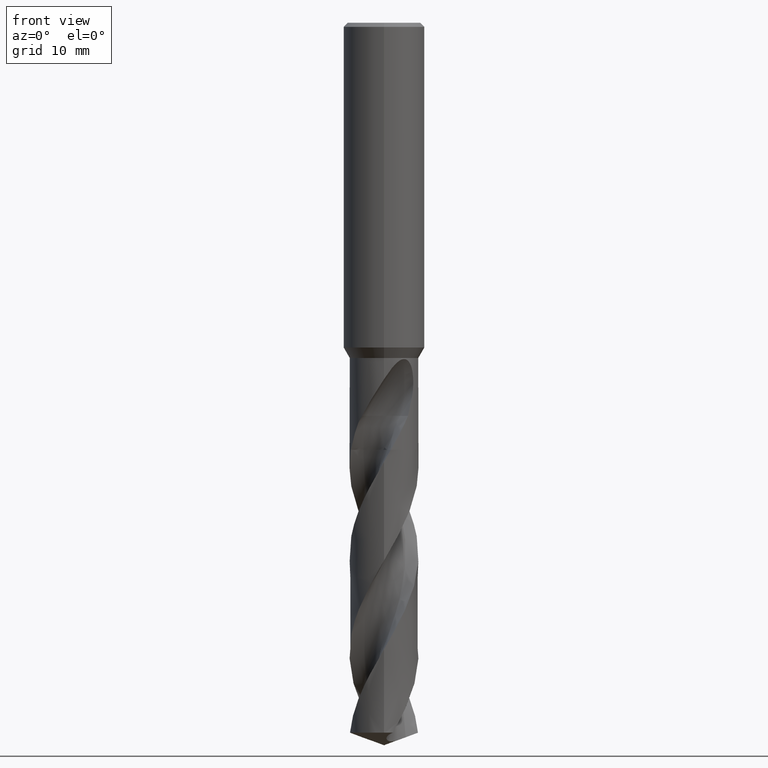
[diagram: clean part render]
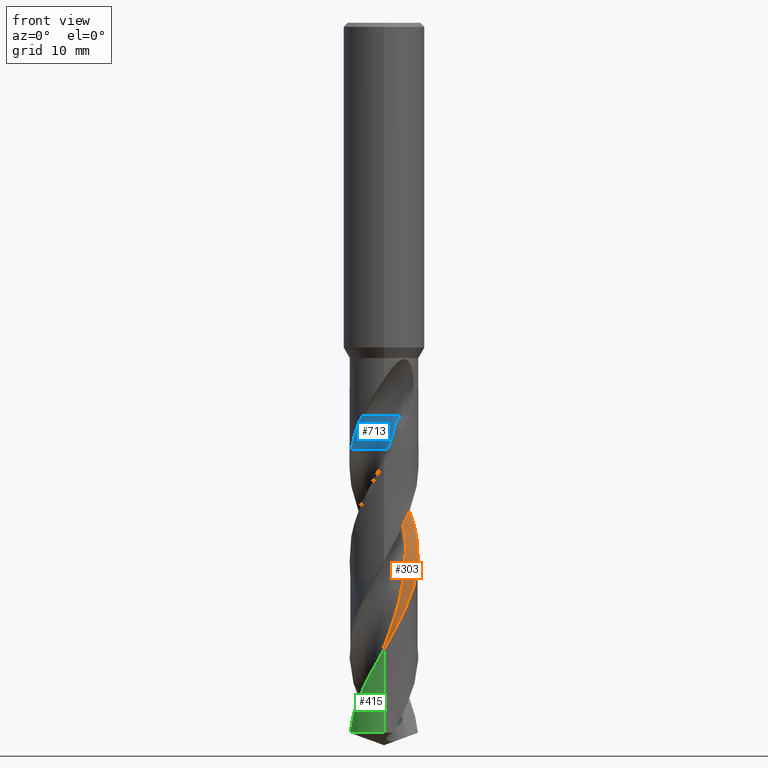
[diagram: same view with three faces highlighted in distinct colors, each labeled with its STEP entity id]
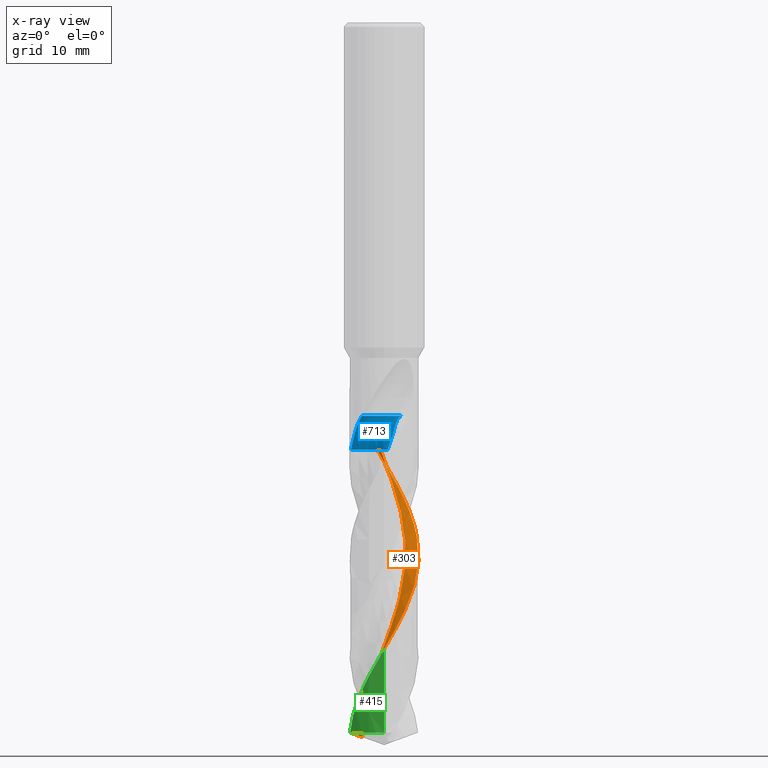
[diagram: x-ray of the same camera — body ghosted, the three highlighted faces saturated]
A machine part, front view with three faces highlighted in distinct colors.
The next image is the same camera in x-ray (body ghosted, the three faces saturated) — at least one of them is partly hidden behind the body in this view.
Their STEP definitions:

[orange] entity #303 — the highlighted face is a freeform B-spline surface patch.
#295=VERTEX_POINT('',#818);
#303=ADVANCED_FACE('',(#826),#827,.F.);
#375=EDGE_CURVE('',#515,#437,#905,.T.);
#377=EDGE_CURVE('',#471,#515,#907,.T.);
#437=VERTEX_POINT('',#972);
#471=VERTEX_POINT('',#1009);
#515=VERTEX_POINT('',#1056);
#647=EDGE_CURVE('',#681,#747,#1196,.T.);
#681=VERTEX_POINT('',#1235);
#687=EDGE_CURVE('',#747,#295,#1242,.T.);
#733=EDGE_CURVE('',#681,#437,#1292,.T.);
#747=VERTEX_POINT('',#1308);
#755=EDGE_CURVE('',#295,#471,#1318,.T.);
#818=CARTESIAN_POINT('',(-2.92487299391429E-015,4.24990427903232,-54.0913765494784));
#826=FACE_OUTER_BOUND('',#1406,.T.);
#827=B_SPLINE_SURFACE_WITH_KNOTS('',3,3,((#1407,#1408,#1409,#1410,#1411,#1412,#1413,#1414,#1415,#1416,#1417,#1418,#1419,#1420,#1421,#1422,#1423,#1424,#1425,#1426,#1427,#1428,#1429,#1430,#1431,#1432,#1433,#1434,#1435,#1436,#1437,#1438,#1439,#1440,#1441,#1442,#1443,#1444,#1445,#1446,#1447,#1448,#1449,#1450,#1451,#1452,#1453,#1454,#1455,#1456,#1457,#1458,#1459,#1460),(#1461,#1462,#1463,#1464,#1465,#1466,#1467,#1468,#1469,#1470,#1471,#1472,#1473,#1474,#1475,#1476,#1477,#1478,#1479,#1480,#1481,#1482,#1483,#1484,#1485,#1486,#1487,#1488,#1489,#1490,#1491,#1492,#1493,#1494,#1495,#1496,#1497,#1498,#1499,#1500,#1501,#1502,#1503,#1504,#1505,#1506,#1507,#1508,#1509,#1510,#1511,#1512,#1513,#1514),(#1515,#1516,#1517,#1518,#1519,#1520,#1521,#1522,#1523,#1524,#1525,#1526,#1527,#1528,#1529,#1530,#1531,#1532,#1533,#1534,#1535,#1536,#1537,#1538,#1539,#1540,#1541,#1542,#1543,#1544,#1545,#1546,#1547,#1548,#1549,#1550,#1551,#1552,#1553,#1554,#1555,#1556,#1557,#1558,#1559,#1560,#1561,#1562,#1563,#1564,#1565,#1566,#1567,#1568),(#1569,#1570,#1571,#1572,#1573,#1574,#1575,#1576,#1577,#1578,#1579,#1580,#1581,#1582,#1583,#1584,#1585,#1586,#1587,#1588,#1589,#1590,#1591,#1592,#1593,#1594,#1595,#1596,#1597,#1598,#1599,#1600,#1601,#1602,#1603,#1604,#1605,#1606,#1607,#1608,#1609,#1610,#1611,#1612,#1613,#1614,#1615,#1616,#1617,#1618,#1619,#1620,#1621,#1622)),.UNSPECIFIED.,.F.,.F.,.F.,(4,4),(4,1,2,2,2,2,2,2,1,2,1,2,1,2,1,2,1,2,1,2,1,2,1,2,1,2,1,2,1,2,1,2,1,4),(5.63785129692462E-017,5.66666667),(0.0,0.815275673980478,1.63055134796096,3.26110269592191,4.89165404388287,6.52220539184382,8.15275673980478,9.78330808776573,11.4138594357267,13.0444107836876,14.6749621316486,16.3055134796096,17.9360648275705,19.5666161755315,21.1971675234924,22.8277188714534,24.4582702194143,26.0888215673753,27.7193729153362,29.3499242632972,30.9804756112581,32.6110269592191,34.2415783071801,35.872129655141,37.502681003102,39.1332323510629,40.7637836990239,42.3943350469848,44.0248863949458,45.6554377429067,47.2859890908677,48.9165404388286,50.5470917867896,52.1776431347506),.UNSPECIFIED.);
#905=B_SPLINE_CURVE_WITH_KNOTS('',3,(#2573,#2574,#2575,#2576),.UNSPECIFIED.,.F.,.F.,(4,4),(0.0,3.68426439049282),.UNSPECIFIED.);
#907=B_SPLINE_CURVE_WITH_KNOTS('',3,(#2579,#2580,#2581,#2582,#2583,#2584,#2585,#2586,#2587,#2588,#2589,#2590,#2591,#2592,#2593,#2594,#2595,#2596,#2597,#2598,#2599,#2600,#2601,#2602,#2603,#2604,#2605,#2606,#2607,#2608,#2609,#2610,#2611,#2612,#2613,#2614,#2615,#2616,#2617,#2618,#2619,#2620,#2621,#2622,#2623,#2624,#2625,#2626,#2627,#2628,#2629,#2630,#2631,#2632,#2633,#2634,#2635,#2636,#2637,#2638,#2639,#2640),.UNSPECIFIED.,.F.,.F.,(4,2,2,2,2,2,2,2,2,2,2,2,2,2,2,2,2,2,2,2,2,2,2,2,2,2,2,2,2,2,4),(0.0,1.67049817046966,3.38909740904153,5.02199569907375,6.66877495202229,7.41883070202367,9.05127730787014,10.6906580367705,12.3321711709247,13.1450460843952,14.7739502407564,16.4185701862064,18.0564791633911,19.6835010590607,21.3286989399336,21.7240429266092,24.4785001770486,24.5219904181697,27.0246942565936,27.8359869198644,29.373938129199,30.0548467186422,30.6865302194499,33.0600834733521,33.5083440408266,35.1963821792972,35.8317670917051,36.9411732694626,38.6094560410513,39.4442831777696,40.2795976064675),.UNSPECIFIED.);
#972=CARTESIAN_POINT('',(-2.6717971082152,-0.138602749724818,-88.0262377526549));
#1009=CARTESIAN_POINT('',(2.37968404207352E-014,-4.2499705072005,-77.1739637851389));
#1056=CARTESIAN_POINT('',(-4.18740231547273,-0.726747444697004,-87.4531265043686));
#1196=B_SPLINE_CURVE_WITH_KNOTS('',3,(#5363,#5364,#5365,#5366,#5367,#5368),.UNSPECIFIED.,.F.,.F.,(4,2,4),(-5.66643572514687,-2.83322433765943,-0.0),.UNSPECIFIED.);
#1235=CARTESIAN_POINT('',(-0.42546679125039,2.63978069602382,-52.605));
#1242=B_SPLINE_CURVE_WITH_KNOTS('',3,(#5745,#5746,#5747,#5748,#5749,#5750,#5751,#5752,#5753,#5754,#5755,#5756,#5757,#5758,#5759,#5760,#5761,#5762,#5763,#5764,#5765,#5766,#5767,#5768,#5769,#5770,#5771,#5772,#5773,#5774,#5775,#5776,#5777,#5778,#5779,#5780,#5781,#5782,#5783,#5784,#5785,#5786,#5787,#5788,#5789,#5790,#5791,#5792,#5793,#5794,#5795,#5796,#5797,#5798,#5799,#5800,#5801,#5802,#5803,#5804,#5805,#5806),.UNSPECIFIED.,.F.,.F.,(4,2,2,2,2,2,2,2,2,2,2,2,2,2,2,2,2,2,2,2,2,2,2,2,2,2,2,2,2,2,4),(0.0,1.67049817046966,3.38909740904153,5.02199569907375,6.66877495202229,7.41883070202367,9.05127730787014,10.6906580367705,12.3321711709247,13.1450460843952,14.7739502407564,16.4185701862064,18.0564791633911,19.6835010590607,21.3286989399336,21.7240429266092,24.4785001770486,24.5219904181697,27.0246942565936,27.8359869198644,29.373938129199,30.0548467186422,30.6865302194499,33.0600834733521,33.5083440408266,35.1963821792972,35.8317670917051,36.9411732694626,38.6094560410513,39.4442831777696,40.2795976064675),.UNSPECIFIED.);
#1292=B_SPLINE_CURVE_WITH_KNOTS('',3,(#6543,#6544,#6545,#6546,#6547,#6548,#6549,#6550,#6551,#6552,#6553,#6554,#6555,#6556,#6557,#6558,#6559,#6560,#6561,#6562,#6563,#6564,#6565,#6566,#6567,#6568,#6569,#6570,#6571,#6572,#6573,#6574,#6575,#6576,#6577,#6578,#6579,#6580,#6581,#6582,#6583,#6584,#6585,#6586,#6587,#6588,#6589,#6590,#6591,#6592,#6593,#6594,#6595),.UNSPECIFIED.,.F.,.F.,(4,1,2,2,2,2,1,2,1,2,1,2,1,2,1,2,1,2,1,2,1,2,1,2,1,2,1,2,1,2,1,2,1,4),(0.0,0.815275673980478,1.63055134796096,3.26110269592191,4.89165404388287,6.52220539184382,8.15275673980478,9.78330808776573,11.4138594357267,13.0444107836876,14.6749621316486,16.3055134796096,17.9360648275705,19.5666161755315,21.1971675234924,22.8277188714534,24.4582702194143,26.0888215673753,27.7193729153362,29.3499242632972,30.9804756112581,32.6110269592191,34.2415783071801,35.872129655141,37.502681003102,39.1332323510629,40.7637836990239,42.3943350469848,44.0248863949458,45.6554377429067,47.2859890908677,48.9165404388286,50.5470917867896,52.1776431347506),.UNSPECIFIED.);
#1308=CARTESIAN_POINT('',(-0.853725638122035,4.16326826746643,-52.605));
#1318=B_SPLINE_CURVE_WITH_KNOTS('',3,(#7426,#7427,#7428,#7429,#7430,#7431,#7432,#7433,#7434,#7435,#7436,#7437,#7438,#7439,#7440,#7441,#7442,#7443,#7444,#7445,#7446,#7447,#7448,#7449,#7450,#7451,#7452,#7453,#7454,#7455,#7456,#7457,#7458,#7459,#7460,#7461,#7462,#7463,#7464,#7465,#7466,#7467,#7468,#7469,#7470,#7471,#7472,#7473,#7474,#7475,#7476,#7477,#7478,#7479,#7480,#7481,#7482,#7483,#7484,#7485,#7486,#7487),.UNSPECIFIED.,.F.,.F.,(4,2,2,2,2,2,2,2,2,2,2,2,2,2,2,2,2,2,2,2,2,2,2,2,2,2,2,2,2,2,4),(0.0,1.67049817046966,3.38909740904153,5.02199569907375,6.66877495202229,7.41883070202367,9.05127730787014,10.6906580367705,12.3321711709247,13.1450460843952,14.7739502407564,16.4185701862064,18.0564791633911,19.6835010590607,21.3286989399336,21.7240429266092,24.4785001770486,24.5219904181697,27.0246942565936,27.8359869198644,29.373938129199,30.0548467186422,30.6865302194499,33.0600834733521,33.5083440408266,35.1963821792972,35.8317670917051,36.9411732694626,38.6094560410513,39.4442831777696,40.2795976064675),.UNSPECIFIED.);
#1406=EDGE_LOOP('',(#8354,#8355,#8356,#8357,#8358,#8359));
#1407=CARTESIAN_POINT('',(-2.00346921100486,2.10486411899514,-48.431));
#1408=CARTESIAN_POINT('',(-1.8274867075201,2.09250513368757,-48.6419962329817));
#1409=CARTESIAN_POINT('',(-1.54425233661978,2.10328936339737,-49.0629774603499));
#1410=CARTESIAN_POINT('',(-1.39838892209279,2.17731682019491,-49.4834842656973));
#1411=CARTESIAN_POINT('',(-1.27055944666304,2.34524024184143,-50.1189113472291));
#1412=CARTESIAN_POINT('',(-1.15011093227688,2.43236427060388,-50.5434067794205));
#1413=CARTESIAN_POINT('',(-0.866634533015464,2.54948104201326,-51.3891128421901));
#1414=CARTESIAN_POINT('',(-0.71510765777341,2.59092287162108,-51.8117595665069));
#1415=CARTESIAN_POINT('',(-0.406753274680256,2.64545602608885,-52.6556329228105));
#1416=CARTESIAN_POINT('',(-0.253211303818002,2.66334733136423,-53.0779313030814));
#1417=CARTESIAN_POINT('',(0.0504901709354529,2.68314094427117,-53.9243525238536));
#1418=CARTESIAN_POINT('',(0.205526711857585,2.67478765694949,-54.3472882588572));
#1419=CARTESIAN_POINT('',(0.51139368243144,2.6313368260878,-55.1920553390382));
#1420=CARTESIAN_POINT('',(0.662230311810516,2.59654618724438,-55.6145277024397));
#1421=CARTESIAN_POINT('',(0.95522171724835,2.50784309301992,-56.4599756818421));
#1422=CARTESIAN_POINT('',(1.24102249220375,2.38612846376397,-57.305553874796));
#1423=CARTESIAN_POINT('',(1.50135016077442,2.21807847782293,-58.1506599487208));
#1424=CARTESIAN_POINT('',(1.74732696240628,2.03637455546575,-58.9959497782329));
#1425=CARTESIAN_POINT('',(1.9753589782831,1.82586010922261,-59.8414491644114));
#1426=CARTESIAN_POINT('',(2.16351598669833,1.57970684846621,-60.6865698082211));
#1427=CARTESIAN_POINT('',(2.3333151648493,1.32522439986779,-61.5318824395212));
#1428=CARTESIAN_POINT('',(2.47651512258508,1.04978866312992,-62.3773886771284));
#1429=CARTESIAN_POINT('',(2.57027227976704,0.754480403371979,-63.2225050906318));
#1430=CARTESIAN_POINT('',(2.64401932864834,0.457601471604599,-64.0678185161747));
#1431=CARTESIAN_POINT('',(2.68563034381646,0.149985030623415,-64.9133277176562));
#1432=CARTESIAN_POINT('',(2.67394931458525,-0.159630700561358,-65.7584472348148));
#1433=CARTESIAN_POINT('',(2.64288810123519,-0.463959197088155,-66.6037618669763));
#1434=CARTESIAN_POINT('',(2.57796523595558,-0.767514545700827,-67.4492703568487));
#1435=CARTESIAN_POINT('',(2.46224812554744,-1.05491756725989,-68.2943882990393));
#1436=CARTESIAN_POINT('',(2.33009682405759,-1.33079151368162,-69.1397025689913));
#1437=CARTESIAN_POINT('',(2.16632155463518,-1.59448309777564,-69.9852118522922));
#1438=CARTESIAN_POINT('',(1.96017691843602,-1.82578171362261,-70.8303289895717));
#1439=CARTESIAN_POINT('',(1.74245889624942,-2.04066431180786,-71.6756398960605));
#1440=CARTESIAN_POINT('',(1.49911175322525,-2.23338433011584,-72.5211468183614));
#1441=CARTESIAN_POINT('',(1.22685754949434,-2.38128710878228,-73.3662643971686));
#1442=CARTESIAN_POINT('',(0.949263952262532,-2.50982335287523,-74.2115771861124));
#1443=CARTESIAN_POINT('',(0.655053086535308,-2.60883368640862,-75.0570857848406));
#1444=CARTESIAN_POINT('',(0.348809369803369,-2.65589527856865,-75.9022037689469));
#1445=CARTESIAN_POINT('',(0.0440963229228918,-2.68293033216969,-76.7475159307532));
#1446=CARTESIAN_POINT('',(-0.266252938430793,-2.6765804403323,-77.5930226106345));
#1447=CARTESIAN_POINT('',(-0.570349313545544,-2.6173000761769,-78.4381462477841));
#1448=CARTESIAN_POINT('',(-0.866237165612453,-2.53968788231629,-79.2834723987441));
#1449=CARTESIAN_POINT('',(-1.15614667559451,-2.42868655017362,-80.1289884623817));
#1450=CARTESIAN_POINT('',(-1.42224480665508,-2.27000026818563,-80.9740839218204));
#1451=CARTESIAN_POINT('',(-1.67441866499961,-2.09691995479512,-81.8193524338741));
#1452=CARTESIAN_POINT('',(-1.9096854374106,-1.89451611603831,-82.6648387546771));
#1453=CARTESIAN_POINT('',(-2.10633006833299,-1.65493626296312,-83.5100352358734));
#1454=CARTESIAN_POINT('',(-2.28480485384217,-1.40616816933275,-84.3554949639358));
#1455=CARTESIAN_POINT('',(-2.43755197485484,-1.1357524135272,-85.2010821028848));
#1456=CARTESIAN_POINT('',(-2.5426244301918,-0.845006745588961,-86.0460434686235));
#1457=CARTESIAN_POINT('',(-2.62871901936786,-0.552679455833852,-86.8910610802954));
#1458=CARTESIAN_POINT('',(-2.68102066846266,-0.24666987634668,-87.7364524433206));
#1459=CARTESIAN_POINT('',(-2.67427539760929,0.0660780887286588,-88.5812801626781));
#1460=CARTESIAN_POINT('',(-2.65968810907266,0.220315418766746,-89.0036019838581));
#1461=CARTESIAN_POINT('',(-3.33911535403478,3.44051026202086,-48.4310000000031));
#1462=CARTESIAN_POINT('',(-3.16489288903971,3.42639121542754,-48.6419461386347));
#1463=CARTESIAN_POINT('',(-2.86165647191316,3.45781300448795,-49.0616593301828));
#1464=CARTESIAN_POINT('',(-2.64478382569334,3.59812770345088,-49.4802533625092));
#1465=CARTESIAN_POINT('',(-2.36445121416702,3.89073032042442,-50.116650256981));
#1466=CARTESIAN_POINT('',(-2.14331866958862,4.04277952653884,-50.5426833797851));
#1467=CARTESIAN_POINT('',(-1.66705194712144,4.26389850602308,-51.3887612919465));
#1468=CARTESIAN_POINT('',(-1.41716189959788,4.34770097514704,-51.8113778548005));
#1469=CARTESIAN_POINT('',(-0.907755717428961,4.46977494557077,-52.6540961801462));
#1470=CARTESIAN_POINT('',(-0.649104502623754,4.51358690181979,-53.0761172075286));
#1471=CARTESIAN_POINT('',(-0.126893000151168,4.56692756687212,-53.9234192682039));
#1472=CARTESIAN_POINT('',(0.136643518900304,4.56551912464149,-54.3465741027967));
#1473=CARTESIAN_POINT('',(0.658865377326758,4.51756515934744,-55.1909082401351));
#1474=CARTESIAN_POINT('',(0.917681872515821,4.47128813297242,-55.6132352581526));
#1475=CARTESIAN_POINT('',(1.42577730019639,4.34046037492054,-56.4587902878703));
#1476=CARTESIAN_POINT('',(1.91985895483855,4.15867356847736,-57.3045780804626));
#1477=CARTESIAN_POINT('',(2.37551630816955,3.89611082414882,-58.1495204990404));
#1478=CARTESIAN_POINT('',(2.81004208857087,3.60181112479012,-58.9947913622276));
#1479=CARTESIAN_POINT('',(3.21401466266011,3.26409897072583,-59.8404383592892));
#1480=CARTESIAN_POINT('',(3.55400042854833,2.86286573116674,-60.6854067169031));
#1481=CARTESIAN_POINT('',(3.86303139879252,2.43873561446159,-61.5307189834662));
#1482=CARTESIAN_POINT('',(4.12870133190339,1.98416530769845,-62.3763778960042));
#1483=CARTESIAN_POINT('',(4.31286846340134,1.49157302847136,-63.2213388800995));
#1484=CARTESIAN_POINT('',(4.46025327226379,0.987918661942913,-64.0666523056424));
#1485=CARTESIAN_POINT('',(4.55651134282108,0.470276912974367,-64.912316808073));
#1486=CARTESIAN_POINT('',(4.56316058784848,-0.0555784892150624,-65.7572829479434));
#1487=CARTESIAN_POINT('',(4.53143673851747,-0.579395511701217,-66.6025990390531));
#1488=CARTESIAN_POINT('',(4.44688203635252,-1.09907809654423,-67.448261808066));
#1489=CARTESIAN_POINT('',(4.27525117528903,-1.59618273832845,-68.2932255555019));
#1490=CARTESIAN_POINT('',(4.06820869504902,-2.07839498219286,-69.138540554928));
#1491=CARTESIAN_POINT('',(3.81282836433914,-2.53883508336391,-69.9842051158349));
#1492=CARTESIAN_POINT('',(3.48311764764695,-2.94854556827255,-70.8291670364864));
#1493=CARTESIAN_POINT('',(3.12511834818439,-3.33225070824119,-71.6744764840271));
#1494=CARTESIAN_POINT('',(2.72900651740017,-3.67911663451489,-72.52013655991));
#1495=CARTESIAN_POINT('',(2.2801166497045,-3.95309868218955,-73.3650996726276));
#1496=CARTESIAN_POINT('',(1.81340453684659,-4.19303527770119,-74.2104117320972));
#1497=CARTESIAN_POINT('',(1.32329353124746,-4.38541344002557,-75.0560748002824));
#1498=CARTESIAN_POINT('',(0.80818001417204,-4.49135831852769,-75.9010380573423));
#1499=CARTESIAN_POINT('',(0.28781465412361,-4.55924118283362,-76.7463509486226));
#1500=CARTESIAN_POINT('',(-0.238477870877282,-4.57447783433768,-77.5920119860607));
#1501=CARTESIAN_POINT('',(-0.759070084912548,-4.49993997448631,-78.4369852458336));
#1502=CARTESIAN_POINT('',(-1.27173591977518,-4.3877989476069,-79.282318691534));
#1503=CARTESIAN_POINT('',(-1.77215572587367,-4.22404593086795,-80.1279888732976));
#1504=CARTESIAN_POINT('',(-2.23681281667968,-3.9777557062548,-80.9729136522974));
#1505=CARTESIAN_POINT('',(-2.68130776405383,-3.69883117165451,-81.8181588211818));
#1506=CARTESIAN_POINT('',(-3.09684458456286,-3.37554068853513,-82.663804361395));
#1507=CARTESIAN_POINT('',(-3.45062434513689,-2.9864007743198,-83.50889883877));
#1508=CARTESIAN_POINT('',(-3.77412942069793,-2.57314403536114,-84.3544213015998));
#1509=CARTESIAN_POINT('',(-4.05561570137571,-2.12808645130475,-85.2001296809676));
#1510=CARTESIAN_POINT('',(-4.25830587363673,-1.64281867809828,-86.0447998722858));
#1511=CARTESIAN_POINT('',(-4.42559311187208,-1.14538964058232,-86.8896963912671));
#1512=CARTESIAN_POINT('',(-4.53957689191929,-0.631442274281349,-87.7353881152964));
#1513=CARTESIAN_POINT('',(-4.5583499409703,-0.10629762157802,-88.5802262778331));
#1514=CARTESIAN_POINT('',(-4.54745944449921,0.155358499384905,-89.0024963063563));
#1515=CARTESIAN_POINT('',(-4.67476149705574,4.77615640505021,-48.4309999999969));
#1516=CARTESIAN_POINT('',(-4.50229911212687,4.76027729862823,-48.641896032791));
#1517=CARTESIAN_POINT('',(-4.17906057751555,4.8123366539512,-49.0603412094595));
#1518=CARTESIAN_POINT('',(-3.8911787471503,5.01893856853583,-49.4770224519558));
#1519=CARTESIAN_POINT('',(-3.45834294597482,5.43622043542547,-50.1143891814493));
#1520=CARTESIAN_POINT('',(-3.13652649016514,5.65319486268373,-50.5419600579962));
#1521=CARTESIAN_POINT('',(-2.46746927800278,5.97831588986037,-51.388409663886));
#1522=CARTESIAN_POINT('',(-2.11921604695998,6.10447909670027,-51.8109961397685));
#1523=CARTESIAN_POINT('',(-1.40875825463162,6.29409384707116,-52.6525594407892));
#1524=CARTESIAN_POINT('',(-1.04499778295294,6.36382687341468,-53.0743032214266));
#1525=CARTESIAN_POINT('',(-0.304276089726939,6.45071378849811,-53.9224859030807));
#1526=CARTESIAN_POINT('',(0.0677601689862762,6.45625062647405,-54.3458599528529));
#1527=CARTESIAN_POINT('',(0.806337229124853,6.40379345852725,-55.1897611350727));
#1528=CARTESIAN_POINT('',(1.17313315479904,6.34603017648292,-55.6119428757483));
#1529=CARTESIAN_POINT('',(1.8963331615692,6.17307755906253,-56.4576048320044));
#1530=CARTESIAN_POINT('',(2.59869520392222,5.93121868204116,-57.3036025446115));
#1531=CARTESIAN_POINT('',(3.24968260433078,5.57414325071994,-58.1483805942913));
#1532=CARTESIAN_POINT('',(3.87275706597468,5.16724761396739,-58.9936334012109));
#1533=CARTESIAN_POINT('',(4.45267045600952,4.70233788761755,-59.8394272356096));
#1534=CARTESIAN_POINT('',(4.94448480129816,4.14602458330108,-60.6842438079317));
#1535=CARTESIAN_POINT('',(5.3927477018746,3.55224685961893,-61.5295553451302));
#1536=CARTESIAN_POINT('',(5.78088763954542,2.91854188137003,-62.3753673738114));
#1537=CARTESIAN_POINT('',(6.05546438132487,2.22866576482281,-63.2201723339697));
#1538=CARTESIAN_POINT('',(6.27648748157516,1.51823574105353,-64.0654864306759));
#1539=CARTESIAN_POINT('',(6.42739226553012,0.790568834129213,-64.9113055318916));
#1540=CARTESIAN_POINT('',(6.45237174792767,0.0484737557776566,-65.7561190584067));
#1541=CARTESIAN_POINT('',(6.4199854890102,-0.694831859925294,-66.6014358136681));
#1542=CARTESIAN_POINT('',(6.31579868836852,-1.4306416535977,-67.4472535732675));
#1543=CARTESIAN_POINT('',(6.08825440875023,-2.13744786337043,-68.2920625813408));
#1544=CARTESIAN_POINT('',(5.80632038240519,-2.82599849675278,-69.1373787714058));
#1545=CARTESIAN_POINT('',(5.45933523166593,-3.48318708388771,-69.9831980864343));
#1546=CARTESIAN_POINT('',(5.00605844524087,-4.07130934697788,-70.8280054382802));
#1547=CARTESIAN_POINT('',(4.50777773181666,-4.62383718062066,-71.6733127172191));
#1548=CARTESIAN_POINT('',(3.95890135990355,-5.12484899168195,-72.5191264629636));
#1549=CARTESIAN_POINT('',(3.33337566175692,-5.52491007421326,-73.3639349796772));
#1550=CARTESIAN_POINT('',(2.67754520957645,-5.87624738393167,-74.2092462465218));
#1551=CARTESIAN_POINT('',(1.991534023849,-6.16199315302234,-75.0550633776807));
#1552=CARTESIAN_POINT('',(1.26755047465587,-6.32682125851986,-75.8998732528506));
#1553=CARTESIAN_POINT('',(0.531533169178881,-6.43555213357156,-76.7451850594417));
#1554=CARTESIAN_POINT('',(-0.210702910281472,-6.47237508681401,-77.5910017732787));
#1555=CARTESIAN_POINT('',(-0.947790826249049,-6.38258005585421,-78.4358243274294));
#1556=CARTESIAN_POINT('',(-1.67723470398323,-6.23590982994112,-79.2811649006962));
#1557=CARTESIAN_POINT('',(-2.38816473893519,-6.01940538936875,-80.1269892920642));
#1558=CARTESIAN_POINT('',(-3.05138087117359,-5.68551117171252,-80.9717434507607));
#1559=CARTESIAN_POINT('',(-3.68819681867124,-5.30074236118128,-81.8169651405105));
#1560=CARTESIAN_POINT('',(-4.28400374643333,-4.85656530234798,-82.6627702578968));
#1561=CARTESIAN_POINT('',(-4.7949186369853,-4.31786523046044,-83.5077619297361));
#1562=CARTESIAN_POINT('',(-5.26345397256739,-3.74011995666423,-84.3533481510771));
#1563=CARTESIAN_POINT('',(-5.6736794061766,-3.12042041651683,-85.199177058756));
#1564=CARTESIAN_POINT('',(-5.97398737559246,-2.44063070036411,-86.0435561643619));
#1565=CARTESIAN_POINT('',(-6.22246714593143,-1.73809973562263,-86.8883318138976));
#1566=CARTESIAN_POINT('',(-6.39813306693163,-1.01621473346749,-87.7343233922598));
#1567=CARTESIAN_POINT('',(-6.44242463983753,-0.278673299134682,-88.5791730713999));
#1568=CARTESIAN_POINT('',(-6.43523077993243,0.0904015799903582,-89.0013906288169));
#1569=CARTESIAN_POINT('',(-6.01040764008565,6.11180254807593,-48.431));
#1570=CARTESIAN_POINT('',(-5.83970529364647,6.09416340316426,-48.641845927046));
#1571=CARTESIAN_POINT('',(-5.4964647014109,6.16686028364374,-49.0590230849915));
#1572=CARTESIAN_POINT('',(-5.13757367354691,6.4397494517918,-49.4737915487677));
#1573=CARTESIAN_POINT('',(-4.55223466788667,6.98171051400846,-50.1121280912012));
#1574=CARTESIAN_POINT('',(-4.12973431866113,7.26361011861868,-50.5412366583608));
#1575=CARTESIAN_POINT('',(-3.2678866009245,7.69273335387019,-51.3880581136424));
#1576=CARTESIAN_POINT('',(-2.82127028878445,7.8612571546341,-51.8106144736542));
#1577=CARTESIAN_POINT('',(-1.90976069738033,8.1184128121452,-52.6510226525327));
#1578=CARTESIAN_POINT('',(-1.44089093616656,8.21406644387024,-53.0724891258738));
#1579=CARTESIAN_POINT('',(-0.481659306405687,8.33450041109906,-53.9215526474311));
#1580=CARTESIAN_POINT('',(-0.00112302397100505,8.34698204857392,-54.3451459791609));
#1581=CARTESIAN_POINT('',(0.953808924020171,8.29002183737902,-55.1886138538011));
#1582=CARTESIAN_POINT('',(1.42858462432009,8.22077207661884,-55.6106503402769));
#1583=CARTESIAN_POINT('',(2.3668888357015,8.00569488655527,-56.4564195292169));
#1584=CARTESIAN_POINT('',(3.2775316209649,7.70376371836637,-57.3026267958702));
#1585=CARTESIAN_POINT('',(4.12384875172591,7.25217568823008,-58.1472409622425));
#1586=CARTESIAN_POINT('',(4.93547219213928,6.73268409210751,-58.992475167574));
#1587=CARTESIAN_POINT('',(5.69132618597866,6.14057677191684,-59.8384164304874));
#1588=CARTESIAN_POINT('',(6.33496915196392,5.42918351159374,-60.6830805342452));
#1589=CARTESIAN_POINT('',(6.92246402700208,4.6657580286206,-61.5283920714437));
#1590=CARTESIAN_POINT('',(7.43307378047555,3.85291859432675,-62.3743565015029));
#1591=CARTESIAN_POINT('',(7.7980606105513,2.96575829873794,-63.2190061234374));
#1592=CARTESIAN_POINT('',(8.09272137959848,2.0485530225761,-64.0643202201436));
#1593=CARTESIAN_POINT('',(8.29827326453473,1.11086067088804,-64.9102946223084));
#1594=CARTESIAN_POINT('',(8.34158306678304,0.152525967123952,-65.7549547715354));
#1595=CARTESIAN_POINT('',(8.30853408070035,-0.810268174538356,-66.6002729857449));
#1596=CARTESIAN_POINT('',(8.18471553435759,-1.76220525003323,-67.4462450244849));
#1597=CARTESIAN_POINT('',(7.9012574128997,-2.67871294325474,-68.2908998378035));
#1598=CARTESIAN_POINT('',(7.54443229898875,-3.57360205644827,-69.1362167573425));
#1599=CARTESIAN_POINT('',(7.10584205276792,-4.42753902388385,-69.9821913499771));
#1600=CARTESIAN_POINT('',(6.5289991060636,-5.19407320162782,-70.826843485195));
#1601=CARTESIAN_POINT('',(5.89043725213983,-5.91542357705399,-71.6721493051857));
#1602=CARTESIAN_POINT('',(5.18879604429223,-6.57058134167313,-72.5181163868806));
#1603=CARTESIAN_POINT('',(4.38663485315133,-7.09672155643628,-73.3627698903991));
#1604=CARTESIAN_POINT('',(3.54168570297625,-7.55945939994188,-74.2080811572438));
#1605=CARTESIAN_POINT('',(2.65977444576508,-7.93857290663929,-75.0540522107539));
#1606=CARTESIAN_POINT('',(1.72692125580092,-8.16228420729465,-75.898707541246));
#1607=CARTESIAN_POINT('',(0.775251363603216,-8.31186307541975,-76.7440200773112));
#1608=CARTESIAN_POINT('',(-0.18292777433977,-8.3702725947997,-77.5899909663363));
#1609=CARTESIAN_POINT('',(-1.13651159761605,-8.26521963501873,-78.4346636902159));
#1610=CARTESIAN_POINT('',(-2.08273345814596,-8.08402121437662,-79.2800108287491));
#1611=CARTESIAN_POINT('',(-3.00417378921436,-7.81476463328669,-80.1259898853486));
#1612=CARTESIAN_POINT('',(-3.86594888119818,-7.39326656418956,-80.9705731812377));
#1613=CARTESIAN_POINT('',(-4.69508591772545,-6.90265362363279,-81.8157715278182));
#1614=CARTESIAN_POINT('',(-5.47116291638166,-6.3375898748448,-82.6617358646148));
#1615=CARTESIAN_POINT('',(-6.13921286819707,-5.64932969622499,-83.5066255326326));
#1616=CARTESIAN_POINT('',(-6.75277858501527,-4.90709586828475,-84.352274488741));
#1617=CARTESIAN_POINT('',(-7.29174315549353,-4.11275445429438,-85.1982246368388));
#1618=CARTESIAN_POINT('',(-7.68966872785313,-3.23844258728131,-86.0423125680242));
#1619=CARTESIAN_POINT('',(-8.0193413296199,-2.33080996596323,-86.8869671248693));
#1620=CARTESIAN_POINT('',(-8.25668924479614,-1.40098706301396,-87.7332590642356));
#1621=CARTESIAN_POINT('',(-8.32649918319855,-0.451049100625616,-88.5781191865549));
#1622=CARTESIAN_POINT('',(-8.32300211535898,0.0254446606085175,-89.0002849513151));
#2573=CARTESIAN_POINT('',(-5.77725741556491,-1.65779876773399,-86.8123905232027));
#2574=CARTESIAN_POINT('',(-4.82782976777555,-0.988960896793624,-87.211694291604));
#2575=CARTESIAN_POINT('',(-3.77951602471314,-0.474601527897979,-87.6172668409308));
#2576=CARTESIAN_POINT('',(-2.67179710819876,-0.138602749821887,-88.026237752659));
#2579=CARTESIAN_POINT('',(-0.854380163967011,4.16313399246552,-52.6038463244049));
#2580=CARTESIAN_POINT('',(-0.581009482802093,4.21923796688139,-53.0857005520333));
#2581=CARTESIAN_POINT('',(-0.30300163317502,4.2482307340058,-53.5670206782771));
#2582=CARTESIAN_POINT('',(0.262148531877756,4.25148322824653,-54.5450382495628));
#2583=CARTESIAN_POINT('',(0.548289650594624,4.22414328961847,-55.0387670932767));
#2584=CARTESIAN_POINT('',(1.09697557516256,4.11493292318299,-56.0055115024868));
#2585=CARTESIAN_POINT('',(1.35844242275214,4.03615331575785,-56.4758322360659));
#2586=CARTESIAN_POINT('',(1.8645965856856,3.82889908021374,-57.4221126800411));
#2587=CARTESIAN_POINT('',(2.10819943068047,3.7003872111437,-57.8958574933656));
#2588=CARTESIAN_POINT('',(2.44238188937372,3.48026553924224,-58.5871226060153));
#2589=CARTESIAN_POINT('',(2.54381412550938,3.40682636128369,-58.8033119846395));
#2590=CARTESIAN_POINT('',(2.85513338322842,3.15977632019887,-59.490687315638));
#2591=CARTESIAN_POINT('',(3.05175495054182,2.97033179177519,-59.9609105953439));
#2592=CARTESIAN_POINT('',(3.40685388417338,2.55540231260124,-60.9047171539965));
#2593=CARTESIAN_POINT('',(3.56421672555315,2.33087796142221,-61.3762399995749));
#2594=CARTESIAN_POINT('',(3.8337066266945,1.85460080927199,-62.3229297379768));
#2595=CARTESIAN_POINT('',(3.94526086070864,1.6037212344577,-62.7954443629506));
#2596=CARTESIAN_POINT('',(4.07482129325525,1.21497533248925,-63.5034200185067));
#2597=CARTESIAN_POINT('',(4.11152289487915,1.08429499926252,-63.7376273391429));
#2598=CARTESIAN_POINT('',(4.2027962934798,0.687245258365986,-64.4421871093405));
#2599=CARTESIAN_POINT('',(4.23815383333247,0.417064128770743,-64.9115770602904));
#2600=CARTESIAN_POINT('',(4.2568398855569,-0.129078531940505,-65.8560444542354));
#2601=CARTESIAN_POINT('',(4.23961608470839,-0.40363065677464,-66.3289338199034));
#2602=CARTESIAN_POINT('',(4.15270517874911,-0.944305013973669,-67.2762427692953));
#2603=CARTESIAN_POINT('',(4.0834008522297,-1.20940292812213,-67.7479275935338));
#2604=CARTESIAN_POINT('',(3.89533605713563,-1.72110629509327,-68.6898903151551));
#2605=CARTESIAN_POINT('',(3.77741995964191,-1.96642673190124,-69.158285849088));
#2606=CARTESIAN_POINT('',(3.49498905604257,-2.43361163996216,-70.1026382047501));
#2607=CARTESIAN_POINT('',(3.33050500533192,-2.654298141104,-70.5761261255996));
#2608=CARTESIAN_POINT('',(3.1013930287166,-2.90651376646281,-71.1648243212757));
#2609=CARTESIAN_POINT('',(3.05588216240279,-2.95432650661408,-71.2788275331304));
#2610=CARTESIAN_POINT('',(2.68459702251814,-3.32663286597822,-72.1877450229486));
#2611=CARTESIAN_POINT('',(2.30907114883333,-3.59749366762361,-72.9784255945457));
#2612=CARTESIAN_POINT('',(1.89094076184852,-3.80612171034649,-73.7858163627063));
#2613=CARTESIAN_POINT('',(1.88443301275726,-3.80934797179131,-73.7983665771593));
#2614=CARTESIAN_POINT('',(1.50293897444915,-3.9972593799287,-74.5332142983214));
#2615=CARTESIAN_POINT('',(1.10261396202161,-4.12568566017994,-75.2532725303153));
#2616=CARTESIAN_POINT('',(0.556279993855153,-4.21558429494895,-76.2098743329043));
#2617=CARTESIAN_POINT('',(0.421611518979427,-4.23117280317589,-76.4438056052329));
#2618=CARTESIAN_POINT('',(0.0302693456878851,-4.25761288049897,-77.1221465612162));
#2619=CARTESIAN_POINT('',(-0.227039881656853,-4.25167170244815,-77.565708396621));
#2620=CARTESIAN_POINT('',(-0.595293205447924,-4.20961253252075,-78.2063399055048));
#2621=CARTESIAN_POINT('',(-0.707753718631786,-4.19217236686423,-78.4028109223522));
#2622=CARTESIAN_POINT('',(-0.922967524451349,-4.14988682072124,-78.7817426472689));
#2623=CARTESIAN_POINT('',(-1.02570621716136,-4.12569362711463,-78.9639673975049));
#2624=CARTESIAN_POINT('',(-1.50959616623593,-3.99256190009997,-79.8318136031566));
#2625=CARTESIAN_POINT('',(-1.87537141265567,-3.83440607163284,-80.5144923377703));
#2626=CARTESIAN_POINT('',(-2.27792653039836,-3.58873428700254,-81.3292376477054));
#2627=CARTESIAN_POINT('',(-2.34081128585769,-3.54803662130081,-81.4585947379318));
#2628=CARTESIAN_POINT('',(-2.63519043402542,-3.34629049624956,-82.0755851174871));
#2629=CARTESIAN_POINT('',(-2.85139068731225,-3.16409509497216,-82.5626323997256));
#2630=CARTESIAN_POINT('',(-3.12192929691863,-2.88569309576844,-83.2337146426684));
#2631=CARTESIAN_POINT('',(-3.19304741443232,-2.80680026849998,-83.4171384572335));
#2632=CARTESIAN_POINT('',(-3.38005229130741,-2.58302979612555,-83.9210315994624));
#2633=CARTESIAN_POINT('',(-3.48947985627859,-2.43316465277077,-84.241084421063));
#2634=CARTESIAN_POINT('',(-3.7380227257152,-2.04139079376085,-85.0434642694127));
#2635=CARTESIAN_POINT('',(-3.86386080769395,-1.7918757008391,-85.5241405592159));
#2636=CARTESIAN_POINT('',(-4.01468001990514,-1.40153251401799,-86.2469832690509));
#2637=CARTESIAN_POINT('',(-4.05850375734582,-1.26903991169383,-86.4876596970117));
#2638=CARTESIAN_POINT('',(-4.13297370713124,-1.00023889682436,-86.9702446981691));
#2639=CARTESIAN_POINT('',(-4.16356390248431,-0.864096509271642,-87.2116940791935));
#2640=CARTESIAN_POINT('',(-4.18740231547273,-0.726747444697016,-87.4531265043687));
#5363=CARTESIAN_POINT('',(-0.425466791346614,2.6397806959967,-52.605));
#5364=CARTESIAN_POINT('',(-0.681179330935297,3.54891006947769,-52.605));
#5365=CARTESIAN_POINT('',(-0.936640536353819,4.45811523906196,-52.6049999982832));
#5366=CARTESIAN_POINT('',(-1.44705682751022,6.27667258296233,-52.6049999982832));
#5367=CARTESIAN_POINT('',(-1.70200928480613,7.18601539427172,-52.605));
#5368=CARTESIAN_POINT('',(-1.95670724755767,8.09543038800473,-52.605));
#5745=CARTESIAN_POINT('',(-0.854380163967011,4.16313399246552,-52.6038463244049));
#5746=CARTESIAN_POINT('',(-0.581009482802093,4.21923796688139,-53.0857005520333));
#5747=CARTESIAN_POINT('',(-0.30300163317502,4.2482307340058,-53.5670206782771));
#5748=CARTESIAN_POINT('',(0.262148531877756,4.25148322824653,-54.5450382495628));
#5749=CARTESIAN_POINT('',(0.548289650594624,4.22414328961847,-55.0387670932767));
#5750=CARTESIAN_POINT('',(1.09697557516256,4.11493292318299,-56.0055115024868));
#5751=CARTESIAN_POINT('',(1.35844242275214,4.03615331575785,-56.4758322360659));
#5752=CARTESIAN_POINT('',(1.8645965856856,3.82889908021374,-57.4221126800411));
#5753=CARTESIAN_POINT('',(2.10819943068047,3.7003872111437,-57.8958574933656));
#5754=CARTESIAN_POINT('',(2.44238188937372,3.48026553924224,-58.5871226060153));
#5755=CARTESIAN_POINT('',(2.54381412550938,3.40682636128369,-58.8033119846395));
#5756=CARTESIAN_POINT('',(2.85513338322842,3.15977632019887,-59.490687315638));
#5757=CARTESIAN_POINT('',(3.05175495054182,2.97033179177519,-59.9609105953439));
#5758=CARTESIAN_POINT('',(3.40685388417338,2.55540231260124,-60.9047171539965));
#5759=CARTESIAN_POINT('',(3.56421672555315,2.33087796142221,-61.3762399995749));
#5760=CARTESIAN_POINT('',(3.8337066266945,1.85460080927199,-62.3229297379768));
#5761=CARTESIAN_POINT('',(3.94526086070864,1.6037212344577,-62.7954443629506));
#5762=CARTESIAN_POINT('',(4.07482129325525,1.21497533248925,-63.5034200185067));
#5763=CARTESIAN_POINT('',(4.11152289487915,1.08429499926252,-63.7376273391429));
#5764=CARTESIAN_POINT('',(4.2027962934798,0.687245258365986,-64.4421871093405));
#5765=CARTESIAN_POINT('',(4.23815383333247,0.417064128770743,-64.9115770602904));
#5766=CARTESIAN_POINT('',(4.2568398855569,-0.129078531940505,-65.8560444542354));
#5767=CARTESIAN_POINT('',(4.23961608470839,-0.40363065677464,-66.3289338199034));
#5768=CARTESIAN_POINT('',(4.15270517874911,-0.944305013973669,-67.2762427692953));
#5769=CARTESIAN_POINT('',(4.0834008522297,-1.20940292812213,-67.7479275935338));
#5770=CARTESIAN_POINT('',(3.89533605713563,-1.72110629509327,-68.6898903151551));
#5771=CARTESIAN_POINT('',(3.77741995964191,-1.96642673190124,-69.158285849088));
#5772=CARTESIAN_POINT('',(3.49498905604257,-2.43361163996216,-70.1026382047501));
#5773=CARTESIAN_POINT('',(3.33050500533192,-2.654298141104,-70.5761261255996));
#5774=CARTESIAN_POINT('',(3.1013930287166,-2.90651376646281,-71.1648243212757));
#5775=CARTESIAN_POINT('',(3.05588216240279,-2.95432650661408,-71.2788275331304));
#5776=CARTESIAN_POINT('',(2.68459702251814,-3.32663286597822,-72.1877450229486));
#5777=CARTESIAN_POINT('',(2.30907114883333,-3.59749366762361,-72.9784255945457));
#5778=CARTESIAN_POINT('',(1.89094076184852,-3.80612171034649,-73.7858163627063));
#5779=CARTESIAN_POINT('',(1.88443301275726,-3.80934797179131,-73.7983665771593));
#5780=CARTESIAN_POINT('',(1.50293897444915,-3.9972593799287,-74.5332142983214));
#5781=CARTESIAN_POINT('',(1.10261396202161,-4.12568566017994,-75.2532725303153));
#5782=CARTESIAN_POINT('',(0.556279993855153,-4.21558429494895,-76.2098743329043));
#5783=CARTESIAN_POINT('',(0.421611518979427,-4.23117280317589,-76.4438056052329));
#5784=CARTESIAN_POINT('',(0.0302693456878851,-4.25761288049897,-77.1221465612162));
#5785=CARTESIAN_POINT('',(-0.227039881656853,-4.25167170244815,-77.565708396621));
#5786=CARTESIAN_POINT('',(-0.595293205447924,-4.20961253252075,-78.2063399055048));
#5787=CARTESIAN_POINT('',(-0.707753718631786,-4.19217236686423,-78.4028109223522));
#5788=CARTESIAN_POINT('',(-0.922967524451349,-4.14988682072124,-78.7817426472689));
#5789=CARTESIAN_POINT('',(-1.02570621716136,-4.12569362711463,-78.9639673975049));
#5790=CARTESIAN_POINT('',(-1.50959616623593,-3.99256190009997,-79.8318136031566));
#5791=CARTESIAN_POINT('',(-1.87537141265567,-3.83440607163284,-80.5144923377703));
#5792=CARTESIAN_POINT('',(-2.27792653039836,-3.58873428700254,-81.3292376477054));
#5793=CARTESIAN_POINT('',(-2.34081128585769,-3.54803662130081,-81.4585947379318));
#5794=CARTESIAN_POINT('',(-2.63519043402542,-3.34629049624956,-82.0755851174871));
#5795=CARTESIAN_POINT('',(-2.85139068731225,-3.16409509497216,-82.5626323997256));
#5796=CARTESIAN_POINT('',(-3.12192929691863,-2.88569309576844,-83.2337146426684));
#5797=CARTESIAN_POINT('',(-3.19304741443232,-2.80680026849998,-83.4171384572335));
#5798=CARTESIAN_POINT('',(-3.38005229130741,-2.58302979612555,-83.9210315994624));
#5799=CARTESIAN_POINT('',(-3.48947985627859,-2.43316465277077,-84.241084421063));
#5800=CARTESIAN_POINT('',(-3.7380227257152,-2.04139079376085,-85.0434642694127));
#5801=CARTESIAN_POINT('',(-3.86386080769395,-1.7918757008391,-85.5241405592159));
#5802=CARTESIAN_POINT('',(-4.01468001990514,-1.40153251401799,-86.2469832690509));
#5803=CARTESIAN_POINT('',(-4.05850375734582,-1.26903991169383,-86.4876596970117));
#5804=CARTESIAN_POINT('',(-4.13297370713124,-1.00023889682436,-86.9702446981691));
#5805=CARTESIAN_POINT('',(-4.16356390248431,-0.864096509271642,-87.2116940791935));
#5806=CARTESIAN_POINT('',(-4.18740231547273,-0.726747444697016,-87.4531265043687));
#6543=CARTESIAN_POINT('',(-2.00346921093415,2.10486411906585,-48.431));
#6544=CARTESIAN_POINT('',(-1.8274867074506,2.09250513375828,-48.6419962329817));
#6545=CARTESIAN_POINT('',(-1.54425233654741,2.1032893634673,-49.0629774603494));
#6546=CARTESIAN_POINT('',(-1.39838892201779,2.17731682026062,-49.4834842656986));
#6547=CARTESIAN_POINT('',(-1.2705594465808,2.34524024189989,-50.1189113472268));
#6548=CARTESIAN_POINT('',(-1.15011093218887,2.4323642706586,-50.5434067794181));
#6549=CARTESIAN_POINT('',(-0.866634532927456,2.5494810420535,-51.3891128421925));
#6550=CARTESIAN_POINT('',(-0.715107657683446,2.59092287165775,-51.8117595665046));
#6551=CARTESIAN_POINT('',(-0.406753274580637,2.64545602611587,-52.655632922813));
#6552=CARTESIAN_POINT('',(-0.253211303719162,2.66334733138423,-53.0779313030815));
#6553=CARTESIAN_POINT('',(0.0504901710342925,2.68314094428152,-53.9243525238536));
#6554=CARTESIAN_POINT('',(0.360560153015092,2.66628091727738,-54.7699034847463));
#6555=CARTESIAN_POINT('',(0.662230311913477,2.59654618722999,-55.6145277024446));
#6556=CARTESIAN_POINT('',(0.955221717341657,2.50784309299588,-56.4599756818373));
#6557=CARTESIAN_POINT('',(1.24102249229852,2.38612846372888,-57.3055538747936));
#6558=CARTESIAN_POINT('',(1.5013501608651,2.21807847777407,-58.1506599487305));
#6559=CARTESIAN_POINT('',(1.7473269624873,2.03637455541207,-58.9959497782233));
#6560=CARTESIAN_POINT('',(1.97535897836,1.82586010915759,-59.8414491644163));
#6561=CARTESIAN_POINT('',(2.16351598676659,1.57970684838891,-60.6865698082211));
#6562=CARTESIAN_POINT('',(2.33331516490791,1.32522439979049,-61.5318824395212));
#6563=CARTESIAN_POINT('',(2.47651512263503,1.04978866303918,-62.3773886771284));
#6564=CARTESIAN_POINT('',(2.57027227980542,0.754480403282604,-63.2225050906319));
#6565=CARTESIAN_POINT('',(2.64401932867706,0.45760147150557,-64.0678185161747));
#6566=CARTESIAN_POINT('',(2.68563034383238,0.149985030525802,-64.9133277176562));
#6567=CARTESIAN_POINT('',(2.67394931459219,-0.159630700661355,-65.7584472348148));
#6568=CARTESIAN_POINT('',(2.64288810122765,-0.463959197188153,-66.6037618669764));
#6569=CARTESIAN_POINT('',(2.57796523593906,-0.767514545798336,-67.4492703568487));
#6570=CARTESIAN_POINT('',(2.46224812551815,-1.05491756735871,-68.2943882990393));
#6571=CARTESIAN_POINT('',(2.33009682401864,-1.33079151377079,-69.1397025689913));
#6572=CARTESIAN_POINT('',(2.16632155458469,-1.59448309786609,-69.9852118522922));
#6573=CARTESIAN_POINT('',(1.96017691837694,-1.82578171369952,-70.8303289895718));
#6574=CARTESIAN_POINT('',(1.74245889618068,-2.04066431188477,-71.6756398960605));
#6575=CARTESIAN_POINT('',(1.49911175314795,-2.23338433017918,-72.5211468183615));
#6576=CARTESIAN_POINT('',(1.22685754941301,-2.38128710883786,-73.3662643971687));
#6577=CARTESIAN_POINT('',(0.949263952171544,-2.50982335292116,-74.2115771861124));
#6578=CARTESIAN_POINT('',(0.655053086440321,-2.60883368644194,-75.0570857848503));
#6579=CARTESIAN_POINT('',(0.348809369709947,-2.65589527859692,-75.9022037689276));
#6580=CARTESIAN_POINT('',(0.0440963228198141,-2.68293033217864,-76.7475159307726));
#6581=CARTESIAN_POINT('',(-0.266252938527437,-2.67658044033741,-77.5930226106346));
#6582=CARTESIAN_POINT('',(-0.570349313649124,-2.61730007616358,-78.4381462477648));
#6583=CARTESIAN_POINT('',(-0.866237165706379,-2.53968788229814,-79.2834723987635));
#6584=CARTESIAN_POINT('',(-1.1561466756905,-2.42868655013948,-80.1289884623721));
#6585=CARTESIAN_POINT('',(-1.42224480674751,-2.27000026814225,-80.9740839218205));
#6586=CARTESIAN_POINT('',(-1.67441866508239,-2.09691995474208,-81.8193524338742));
#6587=CARTESIAN_POINT('',(-1.90968543748857,-1.89451611597362,-82.6648387546771));
#6588=CARTESIAN_POINT('',(-2.10633006840636,-1.65493626289536,-83.5100352358735));
#6589=CARTESIAN_POINT('',(-2.28480485390106,-1.4061681692505,-84.3554949639358));
#6590=CARTESIAN_POINT('',(-2.4375519749067,-1.13575241344553,-85.2010821028848));
#6591=CARTESIAN_POINT('',(-2.54262443023827,-0.84500674549357,-86.0460434686235));
#6592=CARTESIAN_POINT('',(-2.62871901939501,-0.552679455743288,-86.8910610802955));
#6593=CARTESIAN_POINT('',(-2.68102066848557,-0.246669876246106,-87.73645244334));
#6594=CARTESIAN_POINT('',(-2.67427539761755,0.0660780888285975,-88.5812801626395));
#6595=CARTESIAN_POINT('',(-2.6596881090761,0.220315418866685,-89.0036019838582));
#7426=CARTESIAN_POINT('',(-0.854380163967011,4.16313399246552,-52.6038463244049));
#7427=CARTESIAN_POINT('',(-0.581009482802093,4.21923796688139,-53.0857005520333));
#7428=CARTESIAN_POINT('',(-0.30300163317502,4.2482307340058,-53.5670206782771));
#7429=CARTESIAN_POINT('',(0.262148531877756,4.25148322824653,-54.5450382495628));
#7430=CARTESIAN_POINT('',(0.548289650594624,4.22414328961847,-55.0387670932767));
#7431=CARTESIAN_POINT('',(1.09697557516256,4.11493292318299,-56.0055115024868));
#7432=CARTESIAN_POINT('',(1.35844242275214,4.03615331575785,-56.4758322360659));
#7433=CARTESIAN_POINT('',(1.8645965856856,3.82889908021374,-57.4221126800411));
#7434=CARTESIAN_POINT('',(2.10819943068047,3.7003872111437,-57.8958574933656));
#7435=CARTESIAN_POINT('',(2.44238188937372,3.48026553924224,-58.5871226060153));
#7436=CARTESIAN_POINT('',(2.54381412550938,3.40682636128369,-58.8033119846395));
#7437=CARTESIAN_POINT('',(2.85513338322842,3.15977632019887,-59.490687315638));
#7438=CARTESIAN_POINT('',(3.05175495054182,2.97033179177519,-59.9609105953439));
#7439=CARTESIAN_POINT('',(3.40685388417338,2.55540231260124,-60.9047171539965));
#7440=CARTESIAN_POINT('',(3.56421672555315,2.33087796142221,-61.3762399995749));
#7441=CARTESIAN_POINT('',(3.8337066266945,1.85460080927199,-62.3229297379768));
#7442=CARTESIAN_POINT('',(3.94526086070864,1.6037212344577,-62.7954443629506));
#7443=CARTESIAN_POINT('',(4.07482129325525,1.21497533248925,-63.5034200185067));
#7444=CARTESIAN_POINT('',(4.11152289487915,1.08429499926252,-63.7376273391429));
#7445=CARTESIAN_POINT('',(4.2027962934798,0.687245258365986,-64.4421871093405));
#7446=CARTESIAN_POINT('',(4.23815383333247,0.417064128770743,-64.9115770602904));
#7447=CARTESIAN_POINT('',(4.2568398855569,-0.129078531940505,-65.8560444542354));
#7448=CARTESIAN_POINT('',(4.23961608470839,-0.40363065677464,-66.3289338199034));
#7449=CARTESIAN_POINT('',(4.15270517874911,-0.944305013973669,-67.2762427692953));
#7450=CARTESIAN_POINT('',(4.0834008522297,-1.20940292812213,-67.7479275935338));
#7451=CARTESIAN_POINT('',(3.89533605713563,-1.72110629509327,-68.6898903151551));
#7452=CARTESIAN_POINT('',(3.77741995964191,-1.96642673190124,-69.158285849088));
#7453=CARTESIAN_POINT('',(3.49498905604257,-2.43361163996216,-70.1026382047501));
#7454=CARTESIAN_POINT('',(3.33050500533192,-2.654298141104,-70.5761261255996));
#7455=CARTESIAN_POINT('',(3.1013930287166,-2.90651376646281,-71.1648243212757));
#7456=CARTESIAN_POINT('',(3.05588216240279,-2.95432650661408,-71.2788275331304));
#7457=CARTESIAN_POINT('',(2.68459702251814,-3.32663286597822,-72.1877450229486));
#7458=CARTESIAN_POINT('',(2.30907114883333,-3.59749366762361,-72.9784255945457));
#7459=CARTESIAN_POINT('',(1.89094076184852,-3.80612171034649,-73.7858163627063));
#7460=CARTESIAN_POINT('',(1.88443301275726,-3.80934797179131,-73.7983665771593));
#7461=CARTESIAN_POINT('',(1.50293897444915,-3.9972593799287,-74.5332142983214));
#7462=CARTESIAN_POINT('',(1.10261396202161,-4.12568566017994,-75.2532725303153));
#7463=CARTESIAN_POINT('',(0.556279993855153,-4.21558429494895,-76.2098743329043));
#7464=CARTESIAN_POINT('',(0.421611518979427,-4.23117280317589,-76.4438056052329));
#7465=CARTESIAN_POINT('',(0.0302693456878851,-4.25761288049897,-77.1221465612162));
#7466=CARTESIAN_POINT('',(-0.227039881656853,-4.25167170244815,-77.565708396621));
#7467=CARTESIAN_POINT('',(-0.595293205447924,-4.20961253252075,-78.2063399055048));
#7468=CARTESIAN_POINT('',(-0.707753718631786,-4.19217236686423,-78.4028109223522));
#7469=CARTESIAN_POINT('',(-0.922967524451349,-4.14988682072124,-78.7817426472689));
#7470=CARTESIAN_POINT('',(-1.02570621716136,-4.12569362711463,-78.9639673975049));
#7471=CARTESIAN_POINT('',(-1.50959616623593,-3.99256190009997,-79.8318136031566));
#7472=CARTESIAN_POINT('',(-1.87537141265567,-3.83440607163284,-80.5144923377703));
#7473=CARTESIAN_POINT('',(-2.27792653039836,-3.58873428700254,-81.3292376477054));
#7474=CARTESIAN_POINT('',(-2.34081128585769,-3.54803662130081,-81.4585947379318));
#7475=CARTESIAN_POINT('',(-2.63519043402542,-3.34629049624956,-82.0755851174871));
#7476=CARTESIAN_POINT('',(-2.85139068731225,-3.16409509497216,-82.5626323997256));
#7477=CARTESIAN_POINT('',(-3.12192929691863,-2.88569309576844,-83.2337146426684));
#7478=CARTESIAN_POINT('',(-3.19304741443232,-2.80680026849998,-83.4171384572335));
#7479=CARTESIAN_POINT('',(-3.38005229130741,-2.58302979612555,-83.9210315994624));
#7480=CARTESIAN_POINT('',(-3.48947985627859,-2.43316465277077,-84.241084421063));
#7481=CARTESIAN_POINT('',(-3.7380227257152,-2.04139079376085,-85.0434642694127));
#7482=CARTESIAN_POINT('',(-3.86386080769395,-1.7918757008391,-85.5241405592159));
#7483=CARTESIAN_POINT('',(-4.01468001990514,-1.40153251401799,-86.2469832690509));
#7484=CARTESIAN_POINT('',(-4.05850375734582,-1.26903991169383,-86.4876596970117));
#7485=CARTESIAN_POINT('',(-4.13297370713124,-1.00023889682436,-86.9702446981691));
#7486=CARTESIAN_POINT('',(-4.16356390248431,-0.864096509271642,-87.2116940791935));
#7487=CARTESIAN_POINT('',(-4.18740231547273,-0.726747444697016,-87.4531265043687));
#8354=ORIENTED_EDGE('',*,*,#375,.F.);
#8355=ORIENTED_EDGE('',*,*,#377,.F.);
#8356=ORIENTED_EDGE('',*,*,#755,.F.);
#8357=ORIENTED_EDGE('',*,*,#687,.F.);
#8358=ORIENTED_EDGE('',*,*,#647,.F.);
#8359=ORIENTED_EDGE('',*,*,#733,.T.);

[blue] entity #713 — the highlighted face is a freeform B-spline surface patch.
#291=VERTEX_POINT('',#814);
#329=VERTEX_POINT('',#855);
#385=EDGE_CURVE('',#573,#389,#915,.T.);
#389=VERTEX_POINT('',#920);
#393=EDGE_CURVE('',#511,#329,#924,.T.);
#431=EDGE_CURVE('',#291,#573,#966,.T.);
#461=EDGE_CURVE('',#389,#511,#999,.T.);
#511=VERTEX_POINT('',#1052);
#573=VERTEX_POINT('',#1116);
#695=EDGE_CURVE('',#329,#291,#1250,.T.);
#713=ADVANCED_FACE('',(#1269),#1270,.F.);
#814=CARTESIAN_POINT('',(0.427287530322431,-2.6395212903332,-52.6));
#855=CARTESIAN_POINT('',(2.00346921093415,-2.10486411906584,-48.431));
#915=B_SPLINE_CURVE_WITH_KNOTS('',3,(#2692,#2693,#2694,#2695,#2696,#2697,#2698,#2699,#2700,#2701),.UNSPECIFIED.,.F.,.F.,(4,2,2,2,4),(0.0,2.11172093174234,3.15791547680666,4.01865626928648,4.82293686048495),.UNSPECIFIED.);
#920=CARTESIAN_POINT('',(-2.70816295102279,-3.27541652781864,-48.431));
#924=CIRCLE('',#2741,2.83333333);
#966=B_SPLINE_CURVE_WITH_KNOTS('',3,(#3627,#3628,#3629,#3630,#3631,#3632,#3633,#3634,#3635,#3636,#3637,#3638,#3639,#3640),.UNSPECIFIED.,.F.,.F.,(4,2,2,2,2,2,4),(0.0,1.10634587477827,2.21213887176955,3.31780814354368,4.42383843914938,5.16644892145074,5.90907647495907),.UNSPECIFIED.);
#999=CIRCLE('',#3734,2.83333333);
#1052=CARTESIAN_POINT('',(0.448475527882155,-1.31070459420002,-48.431));
#1116=CARTESIAN_POINT('',(-4.0756542485525,-1.20479975359227,-52.6));
#1250=B_SPLINE_CURVE_WITH_KNOTS('',3,(#5819,#5820,#5821,#5822,#5823,#5824,#5825,#5826,#5827,#5828,#5829,#5830,#5831,#5832,#5833,#5834,#5835,#5836,#5837,#5838,#5839,#5840,#5841,#5842,#5843,#5844,#5845,#5846,#5847,#5848,#5849,#5850,#5851,#5852,#5853,#5854,#5855,#5856,#5857,#5858,#5859,#5860,#5861,#5862,#5863,#5864,#5865,#5866,#5867,#5868,#5869,#5870,#5871),.UNSPECIFIED.,.F.,.F.,(4,1,2,2,2,2,1,2,1,2,1,2,1,2,1,2,1,2,1,2,1,2,1,2,1,2,1,2,1,2,1,2,1,4),(0.0,0.815275673980478,1.63055134796096,3.26110269592191,4.89165404388287,6.52220539184382,8.15275673980478,9.78330808776573,11.4138594357267,13.0444107836876,14.6749621316486,16.3055134796096,17.9360648275705,19.5666161755315,21.1971675234924,22.8277188714534,24.4582702194143,26.0888215673753,27.7193729153362,29.3499242632972,30.9804756112581,32.6110269592191,34.2415783071801,35.872129655141,37.502681003102,39.1332323510629,40.7637836990239,42.3943350469848,44.0248863949458,45.6554377429067,47.2859890908677,48.9165404388286,50.5470917867896,52.1776431347506),.UNSPECIFIED.);
#1269=FACE_OUTER_BOUND('',#5920,.T.);
#1270=B_SPLINE_SURFACE_WITH_KNOTS('',3,3,((#5921,#5922,#5923,#5924,#5925,#5926,#5927,#5928,#5929,#5930,#5931,#5932,#5933,#5934,#5935,#5936,#5937,#5938,#5939,#5940,#5941,#5942,#5943,#5944,#5945,#5946,#5947,#5948,#5949,#5950,#5951,#5952,#5953,#5954,#5955,#5956,#5957,#5958,#5959,#5960,#5961,#5962,#5963,#5964,#5965,#5966,#5967,#5968,#5969,#5970,#5971,#5972,#5973),(#5974,#5975,#5976,#5977,#5978,#5979,#5980,#5981,#5982,#5983,#5984,#5985,#5986,#5987,#5988,#5989,#5990,#5991,#5992,#5993,#5994,#5995,#5996,#5997,#5998,#5999,#6000,#6001,#6002,#6003,#6004,#6005,#6006,#6007,#6008,#6009,#6010,#6011,#6012,#6013,#6014,#6015,#6016,#6017,#6018,#6019,#6020,#6021,#6022,#6023,#6024,#6025,#6026),(#6027,#6028,#6029,#6030,#6031,#6032,#6033,#6034,#6035,#6036,#6037,#6038,#6039,#6040,#6041,#6042,#6043,#6044,#6045,#6046,#6047,#6048,#6049,#6050,#6051,#6052,#6053,#6054,#6055,#6056,#6057,#6058,#6059,#6060,#6061,#6062,#6063,#6064,#6065,#6066,#6067,#6068,#6069,#6070,#6071,#6072,#6073,#6074,#6075,#6076,#6077,#6078,#6079),(#6080,#6081,#6082,#6083,#6084,#6085,#6086,#6087,#6088,#6089,#6090,#6091,#6092,#6093,#6094,#6095,#6096,#6097,#6098,#6099,#6100,#6101,#6102,#6103,#6104,#6105,#6106,#6107,#6108,#6109,#6110,#6111,#6112,#6113,#6114,#6115,#6116,#6117,#6118,#6119,#6120,#6121,#6122,#6123,#6124,#6125,#6126,#6127,#6128,#6129,#6130,#6131,#6132),(#6133,#6134,#6135,#6136,#6137,#6138,#6139,#6140,#6141,#6142,#6143,#6144,#6145,#6146,#6147,#6148,#6149,#6150,#6151,#6152,#6153,#6154,#6155,#6156,#6157,#6158,#6159,#6160,#6161,#6162,#6163,#6164,#6165,#6166,#6167,#6168,#6169,#6170,#6171,#6172,#6173,#6174,#6175,#6176,#6177,#6178,#6179,#6180,#6181,#6182,#6183,#6184,#6185),(#6186,#6187,#6188,#6189,#6190,#6191,#6192,#6193,#6194,#6195,#6196,#6197,#6198,#6199,#6200,#6201,#6202,#6203,#6204,#6205,#6206,#6207,#6208,#6209,#6210,#6211,#6212,#6213,#6214,#6215,#6216,#6217,#6218,#6219,#6220,#6221,#6222,#6223,#6224,#6225,#6226,#6227,#6228,#6229,#6230,#6231,#6232,#6233,#6234,#6235,#6236,#6237,#6238),(#6239,#6240,#6241,#6242,#6243,#6244,#6245,#6246,#6247,#6248,#6249,#6250,#6251,#6252,#6253,#6254,#6255,#6256,#6257,#6258,#6259,#6260,#6261,#6262,#6263,#6264,#6265,#6266,#6267,#6268,#6269,#6270,#6271,#6272,#6273,#6274,#6275,#6276,#6277,#6278,#6279,#6280,#6281,#6282,#6283,#6284,#6285,#6286,#6287,#6288,#6289,#6290,#6291),(#6292,#6293,#6294,#6295,#6296,#6297,#6298,#6299,#6300,#6301,#6302,#6303,#6304,#6305,#6306,#6307,#6308,#6309,#6310,#6311,#6312,#6313,#6314,#6315,#6316,#6317,#6318,#6319,#6320,#6321,#6322,#6323,#6324,#6325,#6326,#6327,#6328,#6329,#6330,#6331,#6332,#6333,#6334,#6335,#6336,#6337,#6338,#6339,#6340,#6341,#6342,#6343,#6344),(#6345,#6346,#6347,#6348,#6349,#6350,#6351,#6352,#6353,#6354,#6355,#6356,#6357,#6358,#6359,#6360,#6361,#6362,#6363,#6364,#6365,#6366,#6367,#6368,#6369,#6370,#6371,#6372,#6373,#6374,#6375,#6376,#6377,#6378,#6379,#6380,#6381,#6382,#6383,#6384,#6385,#6386,#6387,#6388,#6389,#6390,#6391,#6392,#6393,#6394,#6395,#6396,#6397),(#6398,#6399,#6400,#6401,#6402,#6403,#6404,#6405,#6406,#6407,#6408,#6409,#6410,#6411,#6412,#6413,#6414,#6415,#6416,#6417,#6418,#6419,#6420,#6421,#6422,#6423,#6424,#6425,#6426,#6427,#6428,#6429,#6430,#6431,#6432,#6433,#6434,#6435,#6436,#6437,#6438,#6439,#6440,#6441,#6442,#6443,#6444,#6445,#6446,#6447,#6448,#6449,#6450),(#6451,#6452,#6453,#6454,#6455,#6456,#6457,#6458,#6459,#6460,#6461,#6462,#6463,#6464,#6465,#6466,#6467,#6468,#6469,#6470,#6471,#6472,#6473,#6474,#6475,#6476,#6477,#6478,#6479,#6480,#6481,#6482,#6483,#6484,#6485,#6486,#6487,#6488,#6489,#6490,#6491,#6492,#6493,#6494,#6495,#6496,#6497,#6498,#6499,#6500,#6501,#6502,#6503)),.UNSPECIFIED.,.F.,.F.,.F.,(4,1,1,1,1,1,1,1,4),(4,1,2,2,2,2,1,2,1,2,1,2,1,2,1,2,1,2,1,2,1,2,1,2,1,2,1,2,1,2,1,2,1,4),(-4.93715282838235E-017,0.392701182115647,0.785402364231295,1.17810354634694,1.57080472846259,1.96350591057824,2.35620709269388,2.74890827480953,3.14160945692518),(0.0,0.815275673980478,1.63055134796096,3.26110269592191,4.89165404388287,6.52220539184382,8.15275673980478,9.78330808776573,11.4138594357267,13.0444107836876,14.6749621316486,16.3055134796096,17.9360648275705,19.5666161755315,21.1971675234924,22.8277188714534,24.4582702194143,26.0888215673753,27.7193729153362,29.3499242632972,30.9804756112581,32.6110269592191,34.2415783071801,35.872129655141,37.502681003102,39.1332323510629,40.7637836990239,42.3943350469848,44.0248863949458,45.6554377429067,47.2859890908677,48.9165404388286,50.5470917867896,52.1776431347506),.UNSPECIFIED.);
#2692=CARTESIAN_POINT('',(-4.07565424855249,-1.20479975359227,-52.6));
#2693=CARTESIAN_POINT('',(-3.97547302986305,-1.54369757321697,-51.9912331941596));
#2694=CARTESIAN_POINT('',(-3.83632380334629,-1.85929301745662,-51.4115505963868));
#2695=CARTESIAN_POINT('',(-3.58356586610508,-2.29085328364732,-50.5395287548921));
#2696=CARTESIAN_POINT('',(-3.49374047763318,-2.42508253439009,-50.2508447414471));
#2697=CARTESIAN_POINT('',(-3.32163367828767,-2.6544305095292,-49.7150156233642));
#2698=CARTESIAN_POINT('',(-3.25174978376266,-2.74286886923254,-49.4863824048192));
#2699=CARTESIAN_POINT('',(-3.00755518132603,-3.00789200950592,-48.9267732163238));
#2700=CARTESIAN_POINT('',(-2.8699646007547,-3.1416365247269,-48.6740298014529));
#2701=CARTESIAN_POINT('',(-2.70816295102279,-3.27541652781864,-48.431));
#2741=AXIS2_PLACEMENT_3D('',#8453,#8454,#8455);
#3627=CARTESIAN_POINT('',(0.427287530322455,-2.63952129033322,-52.6));
#3628=CARTESIAN_POINT('',(0.327198426545555,-2.28458143057837,-52.6));
#3629=CARTESIAN_POINT('',(0.158743437445454,-1.95258987615479,-52.6));
#3630=CARTESIAN_POINT('',(-0.295889310062289,-1.37204737199658,-52.6));
#3631=CARTESIAN_POINT('',(-0.577650743650225,-1.1290201810703,-52.6));
#3632=CARTESIAN_POINT('',(-1.21846424911648,-0.764680270947117,-52.6));
#3633=CARTESIAN_POINT('',(-1.57136120228349,-0.646848347311638,-52.6));
#3634=CARTESIAN_POINT('',(-2.30259703844783,-0.553035019686446,-52.6));
#3635=CARTESIAN_POINT('',(-2.67393706062028,-0.57799813756361,-52.6));
#3636=CARTESIAN_POINT('',(-3.26916621655861,-0.73744594943303,-52.6));
#3637=CARTESIAN_POINT('',(-3.49885085774935,-0.83256239437532,-52.6));
#3638=CARTESIAN_POINT('',(-3.92764077665115,-1.08004046196134,-52.6));
#3639=CARTESIAN_POINT('',(-4.12490611962571,-1.23134179641942,-52.6));
#3640=CARTESIAN_POINT('',(-4.30000000000001,-1.4063283555812,-52.6));
#3734=AXIS2_PLACEMENT_3D('',#8529,#8530,#8531);
#5819=CARTESIAN_POINT('',(2.00346921093415,-2.10486411906585,-48.431));
#5820=CARTESIAN_POINT('',(1.8274867074506,-2.09250513375828,-48.6419962329817));
#5821=CARTESIAN_POINT('',(1.54425233654741,-2.1032893634673,-49.0629774603494));
#5822=CARTESIAN_POINT('',(1.39838892201779,-2.17731682026062,-49.4834842656986));
#5823=CARTESIAN_POINT('',(1.2705594465808,-2.34524024189989,-50.1189113472268));
#5824=CARTESIAN_POINT('',(1.15011093218887,-2.4323642706586,-50.5434067794181));
#5825=CARTESIAN_POINT('',(0.866634532927456,-2.5494810420535,-51.3891128421925));
#5826=CARTESIAN_POINT('',(0.715107657683446,-2.59092287165775,-51.8117595665046));
#5827=CARTESIAN_POINT('',(0.406753274580637,-2.64545602611587,-52.655632922813));
#5828=CARTESIAN_POINT('',(0.253211303719162,-2.66334733138423,-53.0779313030815));
#5829=CARTESIAN_POINT('',(-0.0504901710342925,-2.68314094428152,-53.9243525238536));
#5830=CARTESIAN_POINT('',(-0.360560153015092,-2.66628091727738,-54.7699034847463));
#5831=CARTESIAN_POINT('',(-0.662230311913477,-2.59654618722999,-55.6145277024446));
#5832=CARTESIAN_POINT('',(-0.955221717341657,-2.50784309299588,-56.4599756818373));
#5833=CARTESIAN_POINT('',(-1.24102249229852,-2.38612846372888,-57.3055538747936));
#5834=CARTESIAN_POINT('',(-1.5013501608651,-2.21807847777407,-58.1506599487305));
#5835=CARTESIAN_POINT('',(-1.7473269624873,-2.03637455541207,-58.9959497782233));
#5836=CARTESIAN_POINT('',(-1.97535897836,-1.82586010915759,-59.8414491644163));
#5837=CARTESIAN_POINT('',(-2.16351598676659,-1.57970684838891,-60.6865698082211));
#5838=CARTESIAN_POINT('',(-2.33331516490791,-1.32522439979049,-61.5318824395212));
#5839=CARTESIAN_POINT('',(-2.47651512263503,-1.04978866303918,-62.3773886771284));
#5840=CARTESIAN_POINT('',(-2.57027227980542,-0.754480403282604,-63.2225050906319));
#5841=CARTESIAN_POINT('',(-2.64401932867706,-0.45760147150557,-64.0678185161747));
#5842=CARTESIAN_POINT('',(-2.68563034383238,-0.149985030525802,-64.9133277176562));
#5843=CARTESIAN_POINT('',(-2.67394931459219,0.159630700661355,-65.7584472348148));
#5844=CARTESIAN_POINT('',(-2.64288810122765,0.463959197188153,-66.6037618669764));
#5845=CARTESIAN_POINT('',(-2.57796523593906,0.767514545798336,-67.4492703568487));
#5846=CARTESIAN_POINT('',(-2.46224812551815,1.05491756735871,-68.2943882990393));
#5847=CARTESIAN_POINT('',(-2.33009682401864,1.33079151377079,-69.1397025689913));
#5848=CARTESIAN_POINT('',(-2.16632155458469,1.59448309786609,-69.9852118522922));
#5849=CARTESIAN_POINT('',(-1.96017691837694,1.82578171369952,-70.8303289895718));
#5850=CARTESIAN_POINT('',(-1.74245889618068,2.04066431188477,-71.6756398960605));
#5851=CARTESIAN_POINT('',(-1.49911175314795,2.23338433017918,-72.5211468183615));
#5852=CARTESIAN_POINT('',(-1.22685754941301,2.38128710883786,-73.3662643971687));
#5853=CARTESIAN_POINT('',(-0.949263952171544,2.50982335292116,-74.2115771861124));
#5854=CARTESIAN_POINT('',(-0.655053086440321,2.60883368644194,-75.0570857848503));
#5855=CARTESIAN_POINT('',(-0.348809369709947,2.65589527859692,-75.9022037689276));
#5856=CARTESIAN_POINT('',(-0.0440963228198141,2.68293033217864,-76.7475159307726));
#5857=CARTESIAN_POINT('',(0.266252938527437,2.67658044033741,-77.5930226106346));
#5858=CARTESIAN_POINT('',(0.570349313649124,2.61730007616358,-78.4381462477648));
#5859=CARTESIAN_POINT('',(0.866237165706379,2.53968788229814,-79.2834723987635));
#5860=CARTESIAN_POINT('',(1.1561466756905,2.42868655013948,-80.1289884623721));
#5861=CARTESIAN_POINT('',(1.42224480674751,2.27000026814225,-80.9740839218205));
#5862=CARTESIAN_POINT('',(1.67441866508239,2.09691995474208,-81.8193524338742));
#5863=CARTESIAN_POINT('',(1.90968543748857,1.89451611597362,-82.6648387546771));
#5864=CARTESIAN_POINT('',(2.10633006840636,1.65493626289536,-83.5100352358735));
#5865=CARTESIAN_POINT('',(2.28480485390106,1.4061681692505,-84.3554949639358));
#5866=CARTESIAN_POINT('',(2.4375519749067,1.13575241344553,-85.2010821028848));
#5867=CARTESIAN_POINT('',(2.54262443023827,0.84500674549357,-86.0460434686235));
#5868=CARTESIAN_POINT('',(2.62871901939501,0.552679455743288,-86.8910610802955));
#5869=CARTESIAN_POINT('',(2.68102066848557,0.246669876246106,-87.73645244334));
#5870=CARTESIAN_POINT('',(2.67427539761755,-0.0660780888285975,-88.5812801626395));
#5871=CARTESIAN_POINT('',(2.6596881090761,-0.220315418866685,-89.0036019838582));
#5920=EDGE_LOOP('',(#8759,#8760,#8761,#8762,#8763));
#5921=CARTESIAN_POINT('',(-2.00346921093415,-6.11180254093415,-48.431));
#5922=CARTESIAN_POINT('',(-2.17417155482567,-6.10472371266009,-48.6421303646466));
#5923=CARTESIAN_POINT('',(-2.51931896833507,-6.05550061057624,-49.0665063093452));
#5924=CARTESIAN_POINT('',(-2.86403537245786,-5.91651373555004,-49.4921339590899));
#5925=CARTESIAN_POINT('',(-3.36590789861316,-5.62692154267848,-50.1249646638831));
#5926=CARTESIAN_POINT('',(-3.68113462564363,-5.41198828991928,-50.5453433759274));
#5927=CARTESIAN_POINT('',(-4.27661774459947,-4.95073323245226,-51.3900540724617));
#5928=CARTESIAN_POINT('',(-4.55522659976782,-4.69708522134004,-51.8127814370685));
#5929=CARTESIAN_POINT('',(-5.06620296919371,-4.14846629084025,-52.6597470865309));
#5930=CARTESIAN_POINT('',(-5.29750747035719,-3.85103136989371,-53.0827878530594));
#5931=CARTESIAN_POINT('',(-5.70184974765678,-3.21529139198177,-53.9268511083889));
#5932=CARTESIAN_POINT('',(-6.0536468398391,-2.54761863929687,-54.7719070325167));
#5933=CARTESIAN_POINT('',(-6.28645678892015,-1.83019418210633,-55.6179878255574));
#5934=CARTESIAN_POINT('',(-6.4530742265657,-1.09617784554119,-56.4631491604488));
#5935=CARTESIAN_POINT('',(-6.55865836006758,-0.349620528270284,-57.3081659736928));
#5936=CARTESIAN_POINT('',(-6.53544839927712,0.404418569317616,-58.1537110215097));
#5937=CARTESIAN_POINT('',(-6.44363773863688,1.15176921396794,-58.9990504895139));
#5938=CARTESIAN_POINT('',(-6.29007669897986,1.89010610651126,-59.8441555488902));
#5939=CARTESIAN_POINT('',(-6.01299420298174,2.59174516789554,-60.689683604925));
#5940=CARTESIAN_POINT('',(-5.67385047039499,3.26392350035849,-61.5349972125961));
#5941=CARTESIAN_POINT('',(-5.27964638329126,3.90676941941254,-62.3800945633811));
#5942=CARTESIAN_POINT('',(-4.78155203571877,4.47330736869164,-63.2256275374721));
#5943=CARTESIAN_POINT('',(-4.23497279165605,4.99110024001101,-64.0709403640888));
#5944=CARTESIAN_POINT('',(-3.64650743080254,5.46265779926839,-64.9160344246544));
#5945=CARTESIAN_POINT('',(-2.98610791493731,5.82726455615437,-65.7615638776279));
#5946=CARTESIAN_POINT('',(-2.29658102758389,6.1296055023952,-66.6068753131999));
#5947=CARTESIAN_POINT('',(-1.58327591659803,6.37426524557142,-67.451970136236));
#5948=CARTESIAN_POINT('',(-0.838454529199569,6.49392760403628,-68.2975013704605));
#5949=CARTESIAN_POINT('',(-0.0872879596252351,6.54512793764515,-69.1428132759511));
#5950=CARTESIAN_POINT('',(0.66673320795834,6.53400443957569,-69.9879073213845));
#5951=CARTESIAN_POINT('',(1.40811315066564,6.39460520619899,-70.8334394223202));
#5952=CARTESIAN_POINT('',(2.13229910712854,6.18864413247511,-71.6787548679569));
#5953=CARTESIAN_POINT('',(2.83808444324445,5.92306981678,-72.5238511481541));
#5954=CARTESIAN_POINT('',(3.48857599996096,5.54106612941289,-73.3693828635691));
#5955=CARTESIAN_POINT('',(4.10037140090831,5.10224691459312,-74.2146970108278));
#5956=CARTESIAN_POINT('',(4.67468577058485,4.6135564494539,-75.0597929190843));
#5957=CARTESIAN_POINT('',(5.15757929438709,4.03400908605683,-75.905323771053));
#5958=CARTESIAN_POINT('',(5.58483638011616,3.41408731164205,-76.7506355989576));
#5959=CARTESIAN_POINT('',(5.9599452264858,2.75990704677742,-77.5957280227125));
#5960=CARTESIAN_POINT('',(6.21826927099853,2.05113967479365,-78.4412540508285));
#5961=CARTESIAN_POINT('',(6.41057110417117,1.32319339179934,-79.286561472667));
#5962=CARTESIAN_POINT('',(6.54222535522317,0.580660718995892,-80.1316643655491));
#5963=CARTESIAN_POINT('',(6.54551212882607,-0.173702141478676,-80.9772168751367));
#5964=CARTESIAN_POINT('',(6.48015359510846,-0.923745701632406,-81.8225480022211));
#5965=CARTESIAN_POINT('',(6.35276027636915,-1.66696028998699,-82.6676077458653));
#5966=CARTESIAN_POINT('',(6.1007249469224,-2.3779453934104,-83.5130780243537));
#5967=CARTESIAN_POINT('',(5.78573395158556,-3.06180469722396,-84.3583688870457));
#5968=CARTESIAN_POINT('',(5.41455514436097,-3.71843819798765,-85.2036320798877));
#5969=CARTESIAN_POINT('',(4.9360623559377,-4.30203683316819,-86.0493728907179));
#5970=CARTESIAN_POINT('',(4.40685212315545,-4.83794229143427,-86.8947144893249));
#5971=CARTESIAN_POINT('',(3.83533943512552,-5.32899861888233,-87.7393021860755));
#5972=CARTESIAN_POINT('',(3.19140416880305,-5.71830189034055,-88.5841009893223));
#5973=CARTESIAN_POINT('',(2.85456060537199,-5.88362955295315,-89.0065620738592));
#5974=CARTESIAN_POINT('',(-2.26571321039674,-5.84953672274002,-48.431));
#5975=CARTESIAN_POINT('',(-2.43676115468351,-5.84280346642532,-48.6421402022816));
#5976=CARTESIAN_POINT('',(-2.77798098182372,-5.78952833603665,-49.0667651144074));
#5977=CARTESIAN_POINT('',(-3.10875414693507,-5.63752649692869,-49.4927683252757));
#5978=CARTESIAN_POINT('',(-3.58068156139604,-5.32345472313563,-50.125408613834));
#5979=CARTESIAN_POINT('',(-3.87613841005344,-5.09577418652622,-50.5454854045823));
#5980=CARTESIAN_POINT('',(-4.43376616097938,-4.61409981802908,-51.3901231030133));
#5981=CARTESIAN_POINT('',(-4.6930610072979,-4.3521350755857,-51.8128563788694));
#5982=CARTESIAN_POINT('',(-5.16456020214913,-3.79025609523173,-52.6600488203961));
#5983=CARTESIAN_POINT('',(-5.37522622275308,-3.48773247814512,-53.083144035462));
#5984=CARTESIAN_POINT('',(-5.73666364999651,-2.84540735346827,-53.9270343499942));
#5985=CARTESIAN_POINT('',(-6.04586481662635,-2.1750053164594,-54.7720539756024));
#5986=CARTESIAN_POINT('',(-6.23628343615774,-1.46208957595535,-55.6182415876727));
#5987=CARTESIAN_POINT('',(-6.36066536681263,-0.736346208211028,-56.4633819052778));
#5988=CARTESIAN_POINT('',(-6.42535396125224,-0.00158579813003384,-57.3083575430119));
#5989=CARTESIAN_POINT('',(-6.36379164009195,0.733894082212746,-58.1539347868829));
#5990=CARTESIAN_POINT('',(-6.23496022391194,1.45913491764332,-58.9992778946818));
#5991=CARTESIAN_POINT('',(-6.04685416441646,2.17249504416443,-59.8443540357829));
#5992=CARTESIAN_POINT('',(-5.73996129153782,2.84368281556477,-60.6899119680059));
#5993=CARTESIAN_POINT('',(-5.37348067921859,3.48254958965397,-61.535225651506));
#5994=CARTESIAN_POINT('',(-4.95523101028146,4.0902213289583,-62.3802930097902));
#5995=CARTESIAN_POINT('',(-4.43938624285798,4.61802171126792,-63.2258565403752));
#5996=CARTESIAN_POINT('',(-3.87834983565513,5.0952134950408,-64.0711693164393));
#5997=CARTESIAN_POINT('',(-3.27915623204131,5.52553201991759,-64.9162329436835));
#5998=CARTESIAN_POINT('',(-2.6151593208974,5.8476798391379,-65.7617924354395));
#5999=CARTESIAN_POINT('',(-1.92576432554638,6.10692408781427,-66.6071036688007));
#6000=CARTESIAN_POINT('',(-1.21631571459107,6.30914727846934,-67.4521681348611));
#6001=CARTESIAN_POINT('',(-0.482474721475911,6.38763506654588,-68.2977296715814));
#6002=CARTESIAN_POINT('',(0.253985216847095,6.39832135172484,-69.1430414254139));
#6003=CARTESIAN_POINT('',(0.990018082730819,6.34856692245955,-69.9881050063173));
#6004=CARTESIAN_POINT('',(1.70713429323788,6.17413742544859,-70.8336675303158));
#6005=CARTESIAN_POINT('',(2.40377455570903,5.93502908331697,-71.6789833298214));
#6006=CARTESIAN_POINT('',(3.07956319869478,5.63918937199244,-72.5240494782563));
#6007=CARTESIAN_POINT('',(3.69537120793279,5.23243141535774,-73.3696115704901));
#6008=CARTESIAN_POINT('',(4.27003216663016,4.77174018175501,-74.2149258188542));
#6009=CARTESIAN_POINT('',(4.80588066610888,4.26471851043262,-75.059991452852));
#6010=CARTESIAN_POINT('',(5.24776199895846,3.67361109626236,-75.9055526043774));
#6011=CARTESIAN_POINT('',(5.63267529380681,3.04567056361341,-76.7508643817293));
#6012=CARTESIAN_POINT('',(5.9653833757554,2.3872535492074,-77.5959264457468));
#6013=CARTESIAN_POINT('',(6.18119845786026,1.68148376804445,-78.4414819721144));
#6014=CARTESIAN_POINT('',(6.33093609036663,0.960318997471179,-79.2867880290299));
#6015=CARTESIAN_POINT('',(6.42125695047495,0.228145879063354,-80.1318606029466));
#6016=CARTESIAN_POINT('',(6.38555726877951,-0.509014275528845,-80.9774466664834));
#6017=CARTESIAN_POINT('',(6.28243724340168,-1.23827369211323,-81.822782343311));
#6018=CARTESIAN_POINT('',(6.11964877589848,-1.95775064516617,-82.6678108461268));
#6019=CARTESIAN_POINT('',(5.83676110341547,-2.63936825023482,-83.5133011569665));
#6020=CARTESIAN_POINT('',(5.49329465509041,-3.29092893914407,-84.3585796847989));
#6021=CARTESIAN_POINT('',(5.09683927576718,-3.91327035109105,-85.2038190819115));
#6022=CARTESIAN_POINT('',(4.59918077225667,-4.45867366765864,-86.0496170705151));
#6023=CARTESIAN_POINT('',(4.05402999572884,-4.95430660567207,-86.8949824288925));
#6024=CARTESIAN_POINT('',(3.47040768429757,-5.40453372984781,-87.739511185005));
#6025=CARTESIAN_POINT('',(2.82146360135094,-5.75213257017732,-88.5843078700509));
#6026=CARTESIAN_POINT('',(2.48389505844506,-5.89636846338398,-89.0067791662338));
#6027=CARTESIAN_POINT('',(-2.68579716556185,-5.22083064584983,-48.431));
#6028=CARTESIAN_POINT('',(-2.85767359210364,-5.21465095717637,-48.6421563806504));
#6029=CARTESIAN_POINT('',(-3.1894285401922,-5.15483535491535,-49.0671907653456));
#6030=CARTESIAN_POINT('',(-3.48714574463424,-4.98235346324749,-49.4938116544047));
#6031=CARTESIAN_POINT('',(-3.88946078260027,-4.63124104196138,-50.1261387658367));
#6032=CARTESIAN_POINT('',(-4.14031699191343,-4.38593323599747,-50.5457189998604));
#6033=CARTESIAN_POINT('',(-4.61412992709556,-3.878482563561,-51.390236632085));
#6034=CARTESIAN_POINT('',(-4.83149763146533,-3.60756833315115,-51.8129796382014));
#6035=CARTESIAN_POINT('',(-5.21878607342017,-3.03487343148835,-52.6605450710964));
#6036=CARTESIAN_POINT('',(-5.38616023395299,-2.7303816778404,-53.0837298267335));
#6037=CARTESIAN_POINT('',(-5.65918734724282,-2.09195082708439,-53.9273357373047));
#6038=CARTESIAN_POINT('',(-5.88212927188125,-1.4330302203708,-54.7722956393292));
#6039=CARTESIAN_POINT('',(-5.9895760227057,-0.745987476632542,-55.6186589511538));
#6040=CARTESIAN_POINT('',(-6.03279458694127,-0.0535820875022016,-56.4637646888743));
#6041=CARTESIAN_POINT('',(-6.02040052332497,0.641326779187969,-57.3086726167829));
#6042=CARTESIAN_POINT('',(-5.88952997519841,1.32444471899941,-58.1543028073887));
#6043=CARTESIAN_POINT('',(-5.69546487203837,1.99075343137375,-58.9996519042585));
#6044=CARTESIAN_POINT('',(-5.44821570382091,2.64043324058626,-59.8446804811944));
#6045=CARTESIAN_POINT('',(-5.09382398447468,3.2388767542069,-60.6902875533135));
#6046=CARTESIAN_POINT('',(-4.68592791976667,3.80026355815756,-61.5356013581935));
#6047=CARTESIAN_POINT('',(-4.2335847227143,4.32803969245333,-62.3806193966171));
#6048=CARTESIAN_POINT('',(-3.69765108588755,4.77132254262755,-63.2262331650814));
#6049=CARTESIAN_POINT('',(-3.12385203761885,5.16158018308919,-64.0715458804846));
#6050=CARTESIAN_POINT('',(-2.51960573171052,5.50517174728462,-64.9165594147697));
#6051=CARTESIAN_POINT('',(-1.86529990819174,5.74098903766975,-65.7621683855456));
#6052=CARTESIAN_POINT('',(-1.19330664050195,5.91411046688888,-66.6074791939419));
#6053=CARTESIAN_POINT('',(-0.508444888387791,6.03301202397478,-67.4524937800963));
#6054=CARTESIAN_POINT('',(0.187066321608215,6.03353452160019,-68.2981051968972));
#6055=CARTESIAN_POINT('',(0.878008221170562,5.96905803887117,-69.1434166141639));
#6056=CARTESIAN_POINT('',(1.56270993509651,5.8492113330199,-69.9884301427586));
#6057=CARTESIAN_POINT('',(2.21737863510929,5.61438485032942,-70.8340427210956));
#6058=CARTESIAN_POINT('',(2.8457576559611,5.31994985063005,-71.6793590492581));
#6059=CARTESIAN_POINT('',(3.44953007797233,4.97552070067322,-72.5243756785463));
#6060=CARTESIAN_POINT('',(3.98614173542348,4.53305699622736,-73.3699877238976));
#6061=CARTESIAN_POINT('',(4.47785173535333,4.04339796520917,-74.2153021300401));
#6062=CARTESIAN_POINT('',(4.92949503878575,3.51501808521754,-75.0603179934052));
#6063=CARTESIAN_POINT('',(5.28477223962586,2.91710448018966,-75.9059289326279));
#6064=CARTESIAN_POINT('',(5.58182702590477,2.28996840290436,-76.7512406844334));
#6065=CARTESIAN_POINT('',(5.82806661845872,1.6399409232711,-77.5962527668533));
#6066=CARTESIAN_POINT('',(5.96007372468513,0.957069323852754,-78.4418568419502));
#6067=CARTESIAN_POINT('',(6.02739762008247,0.266390956135779,-79.2871606283902));
#6068=CARTESIAN_POINT('',(6.03918874338634,-0.428630612313845,-80.1321833968885));
#6069=CARTESIAN_POINT('',(5.93237344178207,-1.11588911836814,-80.977824518596));
#6070=CARTESIAN_POINT('',(5.7620114382853,-1.7885726234267,-81.8231678394206));
#6071=CARTESIAN_POINT('',(5.53788718483318,-2.44650893214922,-82.6681447925387));
#6072=CARTESIAN_POINT('',(5.2049861743388,-3.05713504692657,-83.5136682336724));
#6073=CARTESIAN_POINT('',(4.81742483582237,-3.63278846165545,-84.3589262836822));
#6074=CARTESIAN_POINT('',(4.38406364771072,-4.1765085519678,-85.2041266777175));
#6075=CARTESIAN_POINT('',(3.86327068928284,-4.63791581068367,-86.0500186873918));
#6076=CARTESIAN_POINT('',(3.30226040615791,-5.04668170160702,-86.8954230832403));
#6077=CARTESIAN_POINT('',(2.71066029410699,-5.41045202539018,-87.7398549418302));
#6078=CARTESIAN_POINT('',(2.06828501390552,-5.67266778887527,-88.584648100014));
#6079=CARTESIAN_POINT('',(1.7376542441968,-5.77444069716227,-89.0071362131977));
#6080=CARTESIAN_POINT('',(-2.9070950439224,-4.10833580627303,-48.4309999999997));
#6081=CARTESIAN_POINT('',(-3.08043746324775,-4.10244773257167,-48.6421664812448));
#6082=CARTESIAN_POINT('',(-3.39532010749916,-4.03900089521005,-49.0674564811917));
#6083=CARTESIAN_POINT('',(-3.6354681908249,-3.85711000088554,-49.4944629616482));
#6084=CARTESIAN_POINT('',(-3.92004134637456,-3.49462329155886,-50.1265945698883));
#6085=CARTESIAN_POINT('',(-4.0989647962768,-3.25048873133442,-50.5458648189701));
#6086=CARTESIAN_POINT('',(-4.44181903434336,-2.7554279838962,-51.3903075083983));
#6087=CARTESIAN_POINT('',(-4.59594104195111,-2.49617879043357,-51.8130565844172));
#6088=CARTESIAN_POINT('',(-4.86031018474459,-1.95683488872508,-52.6608548594577));
#6089=CARTESIAN_POINT('',(-4.96655493382357,-1.67446713754188,-53.084095527758));
#6090=CARTESIAN_POINT('',(-5.11928668079741,-1.09218590073917,-53.9275238653032));
#6091=CARTESIAN_POINT('',(-5.22927004074954,-0.498695158313251,-54.7724465106159));
#6092=CARTESIAN_POINT('',(-5.23657576010197,0.104859258519848,-55.6189194884773));
#6093=CARTESIAN_POINT('',(-5.18644507617648,0.704468355270232,-56.4640036503896));
#6094=CARTESIAN_POINT('',(-5.09009648833584,1.29989610652438,-57.3088692995558));
#6095=CARTESIAN_POINT('',(-4.89322784136228,1.87065735498758,-58.1545325515166));
#6096=CARTESIAN_POINT('',(-4.64258336280255,2.41784252589031,-58.9998853789247));
#6097=CARTESIAN_POINT('',(-4.34992164293974,2.9453143738638,-59.8448842668208));
#6098=CARTESIAN_POINT('',(-3.97145870701413,3.4156724058471,-60.6905220214148));
#6099=CARTESIAN_POINT('',(-3.55064116160246,3.84590248627682,-61.5358358907213));
#6100=CARTESIAN_POINT('',(-3.09691091761431,4.24337714446309,-62.3808231437774));
#6101=CARTESIAN_POINT('',(-2.58165292961552,4.55799231259701,-63.226468287391));
#6102=CARTESIAN_POINT('',(-2.04007047018054,4.82043857227881,-64.0717809428668));
#6103=CARTESIAN_POINT('',(-1.47860732892445,5.0409318630843,-64.9167632322421));
#6104=CARTESIAN_POINT('',(-0.887290946050067,5.16266397391008,-65.7624030566761));
#6105=CARTESIAN_POINT('',(-0.288854313590154,5.22641445999185,-66.607713637837));
#6106=CARTESIAN_POINT('',(0.314100644024702,5.2439519318772,-67.4526970759831));
#6107=CARTESIAN_POINT('',(0.911733190254457,5.15842302978517,-68.2983395848431));
#6108=CARTESIAN_POINT('',(1.49644276107946,5.01590574694904,-69.1436508660544));
#6109=CARTESIAN_POINT('',(2.06976622559047,4.82838259123603,-69.9886330943196));
#6110=CARTESIAN_POINT('',(2.60321584288752,4.54569807210309,-70.8342769356337));
#6111=CARTESIAN_POINT('',(3.10522892203804,4.21376954555412,-71.679593597022));
#6112=CARTESIAN_POINT('',(3.58129875711265,3.84333980670241,-72.5245793133317));
#6113=CARTESIAN_POINT('',(3.98765259880296,3.39685316304671,-73.3702225365781));
#6114=CARTESIAN_POINT('',(4.34776907644958,2.91466490104553,-74.2155370499854));
#6115=CARTESIAN_POINT('',(4.67044883859844,2.40502221729317,-75.0605218344343));
#6116=CARTESIAN_POINT('',(4.9017914049462,1.84739097497263,-75.9061638640259));
#6117=CARTESIAN_POINT('',(5.07754195405964,1.27180521957459,-76.7514755895124));
#6118=CARTESIAN_POINT('',(5.20875802740819,0.683042568431131,-77.5964564818061));
#6119=CARTESIAN_POINT('',(5.23775763203591,0.0800164785728786,-78.4420908506734));
#6120=CARTESIAN_POINT('',(5.20836238855689,-0.521099966088608,-79.2873932338845));
#6121=CARTESIAN_POINT('',(5.13264348764702,-1.11955172373508,-80.1323848803424));
#6122=CARTESIAN_POINT('',(4.95591284306341,-1.69682580728098,-80.9780604360295));
#6123=CARTESIAN_POINT('',(4.7248354886844,-2.25249846154715,-81.8234084488174));
#6124=CARTESIAN_POINT('',(4.45103150898636,-2.7899335302705,-82.6683533203135));
#6125=CARTESIAN_POINT('',(4.08956820238041,-3.27345993618781,-83.5138973068719));
#6126=CARTESIAN_POINT('',(3.68446904073074,-3.71859811420551,-84.3591427287099));
#6127=CARTESIAN_POINT('',(3.24509169115821,-4.13216842862759,-85.2043186719019));
#6128=CARTESIAN_POINT('',(2.74045397982294,-4.46388240637773,-86.0502693730623));
#6129=CARTESIAN_POINT('',(2.20732973418301,-4.74315217614955,-86.8956981927794));
#6130=CARTESIAN_POINT('',(1.65430371652067,-4.9825194553616,-87.7400695060182));
#6131=CARTESIAN_POINT('',(1.07004674881011,-5.13017077431266,-88.5848605224404));
#6132=CARTESIAN_POINT('',(0.773407239335638,-5.17707549648014,-89.0073591028969));
#6133=CARTESIAN_POINT('',(-2.68581194391916,-2.99583802708113,-48.431));
#6134=CARTESIAN_POINT('',(-2.8606203603317,-2.98965836155811,-48.6421608715191));
#6135=CARTESIAN_POINT('',(-3.15852534804541,-2.92931353361602,-49.0673089234907));
#6136=CARTESIAN_POINT('',(-3.34188697833099,-2.76076024945687,-49.4941012758753));
#6137=CARTESIAN_POINT('',(-3.51332753596471,-2.43282333264691,-50.1263414516578));
#6138=CARTESIAN_POINT('',(-3.62624241941055,-2.21730055856653,-50.5457838398704));
#6139=CARTESIAN_POINT('',(-3.85284811654536,-1.78380259680329,-51.390268151604));
#6140=CARTESIAN_POINT('',(-3.95300278831102,-1.55953370430287,-51.8130138563333));
#6141=CARTESIAN_POINT('',(-4.11657250848479,-1.09804133888897,-52.6606828250421));
#6142=CARTESIAN_POINT('',(-4.17480766808451,-0.859506697961027,-53.0838924452778));
#6143=CARTESIAN_POINT('',(-4.23788857290861,-0.375136372881667,-53.9274193939395));
#6144=CARTESIAN_POINT('',(-4.26855094894363,0.114677501762008,-54.7723627271313));
#6145=CARTESIAN_POINT('',(-4.2152883011399,0.602776447656841,-55.6187748082517));
#6146=CARTESIAN_POINT('',(-4.11442597662762,1.08092960329071,-56.4638709475589));
#6147=CARTESIAN_POINT('',(-3.97858354308765,1.55232065701998,-57.3087600771258));
#6148=CARTESIAN_POINT('',(-3.76373790900956,1.99402147869718,-58.1544049714813));
#6149=CARTESIAN_POINT('',(-3.50640776227928,2.40949884895236,-58.9997557230393));
#6150=CARTESIAN_POINT('',(-3.21855754903696,2.80668660067008,-59.8447710961695));
#6151=CARTESIAN_POINT('',(-2.86687213809028,3.149497517268,-60.6903918257709));
#6152=CARTESIAN_POINT('',(-2.48430846049728,3.45360981195228,-61.5357056396588));
#6153=CARTESIAN_POINT('',(-2.0791612227215,3.73017087534036,-62.3807100046797));
#6154=CARTESIAN_POINT('',(-1.63224423790348,3.9338249914589,-63.2263377157949));
#6155=CARTESIAN_POINT('',(-1.16933752716387,4.09051784695916,-64.0716504102182));
#6156=CARTESIAN_POINT('',(-0.69450877682282,4.21365571202029,-64.916650037231));
#6157=CARTESIAN_POINT('',(-0.205045678110011,4.2540921004389,-65.7622727567157));
#6158=CARTESIAN_POINT('',(0.283578879014258,4.24494613045213,-66.6075834275696));
#6159=CARTESIAN_POINT('',(0.772071317249199,4.20017998293031,-67.4525842035978));
#6160=CARTESIAN_POINT('',(1.24634527474286,4.0726067602872,-68.2982093972406));
#6161=CARTESIAN_POINT('',(1.70304398352503,3.89864277028319,-69.143520807305));
#6162=CARTESIAN_POINT('',(2.14756862914058,3.69121760559324,-69.9885203738794));
#6163=CARTESIAN_POINT('',(2.5507119804754,3.41070680712454,-70.8341468779854));
#6164=CARTESIAN_POINT('',(2.92163002458386,3.09249719667352,-71.679463340311));
#6165=CARTESIAN_POINT('',(3.269768071578,2.74691597068713,-72.524466240142));
#6166=CARTESIAN_POINT('',(3.55423999725728,2.34656035463563,-73.3700921271028));
#6167=CARTESIAN_POINT('',(3.79563896072109,1.92163307528988,-74.215406606255));
#6168=CARTESIAN_POINT('',(4.00634246767324,1.47865376106507,-75.0604086368718));
#6169=CARTESIAN_POINT('',(4.13859993947306,1.00566647926795,-75.9060333886512));
#6170=CARTESIAN_POINT('',(4.22200763524552,0.524128304865486,-76.7513451540121));
#6171=CARTESIAN_POINT('',(4.27040104448546,0.0359847797607708,-77.5963433521731));
#6172=CARTESIAN_POINT('',(4.2347899075211,-0.453854328957348,-78.4419608918642));
#6173=CARTESIAN_POINT('',(4.15031195020456,-0.935213410220844,-79.2872640712103));
#6174=CARTESIAN_POINT('',(4.03070021447841,-1.41095754043447,-80.1322729779569));
#6175=CARTESIAN_POINT('',(3.8314657026529,-1.85986382299359,-80.9779294453636));
#6176=CARTESIAN_POINT('',(3.58907304050829,-2.28419776080959,-81.8232748133149));
#6177=CARTESIAN_POINT('',(3.31548507627593,-2.69129256009628,-82.6682375397372));
#6178=CARTESIAN_POINT('',(2.97627285089337,-3.04646388801108,-83.5137700776974));
#6179=CARTESIAN_POINT('',(2.60491712765669,-3.36431033385635,-84.3590225514801));
#6180=CARTESIAN_POINT('',(2.20978799514299,-3.65533570697325,-85.2042120587913));
#6181=CARTESIAN_POINT('',(1.7697074446435,-3.87341124730996,-86.0501301307827));
#6182=CARTESIAN_POINT('',(1.31190274119801,-4.04371389896522,-86.8955454490318));
#6183=CARTESIAN_POINT('',(0.842121787148746,-4.18290951235733,-87.7399503297901));
#6184=CARTESIAN_POINT('',(0.355401213018357,-4.24695821404775,-88.5847425763134));
#6185=CARTESIAN_POINT('',(0.111162750296812,-4.25617933487048,-89.0072353271811));
#6186=CARTESIAN_POINT('',(-2.05563656732606,-2.05270679878553,-48.4310000000002));
#6187=CARTESIAN_POINT('',(-2.23168780052373,-2.04569671590804,-48.6421404081624));
#6188=CARTESIAN_POINT('',(-2.51509449742142,-1.99471490007066,-49.0667705550225));
#6189=CARTESIAN_POINT('',(-2.65109765618968,-1.86021528498565,-49.4927816619597));
#6190=CARTESIAN_POINT('',(-2.73123849837816,-1.60749228603757,-50.1254179446854));
#6191=CARTESIAN_POINT('',(-2.79411833535505,-1.44366391285704,-50.545488392406));
#6192=CARTESIAN_POINT('',(-2.93688358627656,-1.11152912085727,-51.3901245521024));
#6193=CARTESIAN_POINT('',(-3.00056541892221,-0.940230317218612,-51.8128579571526));
#6194=CARTESIAN_POINT('',(-3.10080156555362,-0.589237682494253,-52.6600551606358));
#6195=CARTESIAN_POINT('',(-3.13145606657749,-0.409572003278554,-53.0831515182868));
#6196=CARTESIAN_POINT('',(-3.14917929951441,-0.049967692015428,-53.9270382070064));
#6197=CARTESIAN_POINT('',(-3.14623432371125,0.313706351439177,-54.7720570607194));
#6198=CARTESIAN_POINT('',(-3.08119703826818,0.671959907353335,-55.6182469252864));
#6199=CARTESIAN_POINT('',(-2.97994420869924,1.01848824354082,-56.4633867950734));
#6200=CARTESIAN_POINT('',(-2.85508124099847,1.36017067237833,-57.3083615726157));
#6201=CARTESIAN_POINT('',(-2.67301659718523,1.67575582356026,-58.1539394890849));
#6202=CARTESIAN_POINT('',(-2.45991233276629,1.9669926618684,-58.9992826770421));
#6203=CARTESIAN_POINT('',(-2.22636517068861,2.24565497386953,-59.8443582069384));
#6204=CARTESIAN_POINT('',(-1.94822934068723,2.4808752151592,-60.6899167697781));
#6205=CARTESIAN_POINT('',(-1.6492710228571,2.68310918447347,-61.5352304526793));
#6206=CARTESIAN_POINT('',(-1.33528044051246,2.86655270388952,-62.3802971827494));
#6207=CARTESIAN_POINT('',(-0.993965396711558,2.99384540101055,-63.2258613532179));
#6208=CARTESIAN_POINT('',(-0.64421581291823,3.08294299239655,-64.0711741307883));
#6209=CARTESIAN_POINT('',(-0.286683227898974,3.14928991577854,-64.9162371109732));
#6210=CARTESIAN_POINT('',(0.0775691391749798,3.15359671713696,-65.761797250933));
#6211=CARTESIAN_POINT('',(0.43684425481825,3.11912670446274,-66.6071084585941));
#6212=CARTESIAN_POINT('',(0.795744507488589,3.06060267918577,-67.4521722930746));
#6213=CARTESIAN_POINT('',(1.13996038651586,2.94139313713781,-68.2977344899692));
#6214=CARTESIAN_POINT('',(1.46635838714631,2.78736407076561,-69.1430462025956));
#6215=CARTESIAN_POINT('',(1.7842723136616,2.61084126398541,-69.9881091664761));
#6216=CARTESIAN_POINT('',(2.06786036804357,2.38220500745852,-70.8336723358362));
#6217=CARTESIAN_POINT('',(2.32291252790053,2.1268381612086,-71.6789881223643));
#6218=CARTESIAN_POINT('',(2.56236624182566,1.85317154868225,-72.5240536491856));
#6219=CARTESIAN_POINT('',(2.75188777227762,1.54207780763362,-73.3696163853974));
#6220=CARTESIAN_POINT('',(2.90551907577157,1.21548418890518,-74.2149306218857));
#6221=CARTESIAN_POINT('',(3.03828116494313,0.87694540597288,-75.0599956342662));
#6222=CARTESIAN_POINT('',(3.11138806446105,0.520077258872414,-75.9055574063088));
#6223=CARTESIAN_POINT('',(3.14547277734308,0.160765904865677,-76.7508691998616));
#6224=CARTESIAN_POINT('',(3.15585352429434,-0.20272272685909,-77.595930611785));
#6225=CARTESIAN_POINT('',(3.1038649163439,-0.563265247054466,-78.441486765343));
#6226=CARTESIAN_POINT('',(3.01432658522689,-0.912903695154345,-79.286792789882));
#6227=CARTESIAN_POINT('',(2.90112157945721,-1.25848369929233,-80.1318647496598));
#6228=CARTESIAN_POINT('',(2.73022070109791,-1.58018184225269,-80.9774514562484));
#6229=CARTESIAN_POINT('',(2.52763546772244,-1.87884454050356,-81.8227873105897));
#6230=CARTESIAN_POINT('',(2.30412636008192,-2.16560337506667,-82.667815073081));
#6231=CARTESIAN_POINT('',(2.03459102920315,-2.41070535404361,-83.5133058920316));
#6232=CARTESIAN_POINT('',(1.74312283030502,-2.62386279697275,-84.3585840718789));
#6233=CARTESIAN_POINT('',(1.43576982556872,-2.81860461070195,-85.2038230339465));
#6234=CARTESIAN_POINT('',(1.09882000105402,-2.95639716461943,-86.0496222063014));
#6235=CARTESIAN_POINT('',(0.752301512698946,-3.05485113118119,-86.8949880589444));
#6236=CARTESIAN_POINT('',(0.397763138411522,-3.13335685117052,-87.7395155888352));
#6237=CARTESIAN_POINT('',(0.0331478756180089,-3.15749262644387,-88.5843122012351));
#6238=CARTESIAN_POINT('',(-0.148257438107008,-3.15195178542237,-89.0067837299791));
#6239=CARTESIAN_POINT('',(-1.11250841574101,-1.42252681755822,-48.431));
#6240=CARTESIAN_POINT('',(-1.28939007155378,-1.41427392030026,-48.6421082064321));
#6241=CARTESIAN_POINT('',(-1.56298510566407,-1.37749066536832,-49.0659233391608));
#6242=CARTESIAN_POINT('',(-1.66826774872633,-1.29257636181852,-49.4907050198335));
#6243=CARTESIAN_POINT('',(-1.69284145412748,-1.14428065021356,-50.1239646489107));
#6244=CARTESIAN_POINT('',(-1.72927721427112,-1.04735920642092,-50.5450234477697));
#6245=CARTESIAN_POINT('',(-1.83337422865441,-0.84095617709146,-51.389898580324));
#6246=CARTESIAN_POINT('',(-1.88363042432637,-0.732552945206521,-51.8126126229134));
#6247=CARTESIAN_POINT('',(-1.96764090318461,-0.507885488104446,-52.6590674219116));
#6248=CARTESIAN_POINT('',(-1.99534263274319,-0.393162272349915,-53.0819855476378));
#6249=CARTESIAN_POINT('',(-2.01890672568404,-0.166184347935356,-53.9264383371259));
#6250=CARTESIAN_POINT('',(-2.03318450715688,0.068090722215384,-54.7715760446222));
#6251=CARTESIAN_POINT('',(-2.00695890066674,0.301876975620253,-55.6174162104514));
#6252=CARTESIAN_POINT('',(-1.95571616942195,0.526650503577765,-56.4626248969157));
#6253=CARTESIAN_POINT('',(-1.89063443105191,0.752699554716764,-57.3077344563259));
#6254=CARTESIAN_POINT('',(-1.7871180795919,0.964313966139268,-58.1532069732329));
#6255=CARTESIAN_POINT('',(-1.66241821128399,1.15769222765366,-58.9985382559793));
#6256=CARTESIAN_POINT('',(-1.52439838515789,1.34763237333566,-59.8437084481264));
#6257=CARTESIAN_POINT('',(-1.35538684422164,1.51159826572932,-60.689169200453));
#6258=CARTESIAN_POINT('',(-1.17265705710308,1.65170357150237,-61.5344826501714));
#6259=CARTESIAN_POINT('',(-0.978518873746745,1.78400206018353,-62.3796475477289));
#6260=CARTESIAN_POINT('',(-0.763989611688097,1.8811584232985,-63.2251117042415));
#6261=CARTESIAN_POINT('',(-0.54465118038007,1.95110976704459,-64.0704246326392));
#6262=CARTESIAN_POINT('',(-0.317219086927946,2.00987623689356,-64.9155872787234));
#6263=CARTESIAN_POINT('',(-0.0824724919665266,2.02872002351262,-65.761048992869));
#6264=CARTESIAN_POINT('',(0.14760830274266,2.02035380964041,-66.606360980078));
#6265=CARTESIAN_POINT('',(0.381516150964744,1.99871216301866,-67.4515241203365));
#6266=CARTESIAN_POINT('',(0.608774826236683,1.93700099038599,-68.2969870941789));
#6267=CARTESIAN_POINT('',(0.822419594137867,1.85125355124162,-69.1422993768828));
#6268=CARTESIAN_POINT('',(1.03518643259457,1.75173279783086,-69.9874620297327));
#6269=CARTESIAN_POINT('',(1.22817156021086,1.61677441351279,-70.8329255760592));
#6270=CARTESIAN_POINT('',(1.40022670850479,1.46380681458672,-71.6782402702044));
#6271=CARTESIAN_POINT('',(1.56678992417747,1.29817245993642,-72.5234043894033));
#6272=CARTESIAN_POINT('',(1.70274805781408,1.10588200976558,-73.3688676908478));
#6273=CARTESIAN_POINT('',(1.81292354489307,0.903724124476001,-74.2141816106779));
#6274=CARTESIAN_POINT('',(1.91364504448358,0.691502768149401,-75.0593457031115));
#6275=CARTESIAN_POINT('',(1.97654111873314,0.464550658118855,-75.9048083331936));
#6276=CARTESIAN_POINT('',(2.01183179306792,0.237037228450777,-76.7501202360968));
#6277=CARTESIAN_POINT('',(2.03479700741028,0.00326148425496826,-77.5952810798678));
#6278=CARTESIAN_POINT('',(2.01715756126573,-0.231559268477151,-78.4407406395884));
#6279=CARTESIAN_POINT('',(1.97335158726197,-0.457567319521725,-79.2860511527028));
#6280=CARTESIAN_POINT('',(1.91587750887002,-0.685343205038231,-80.1312222943743));
#6281=CARTESIAN_POINT('',(1.81983417835389,-0.900359351082437,-80.976699326821));
#6282=CARTESIAN_POINT('',(1.70211872425943,-1.09815081536284,-81.8220200714741));
#6283=CARTESIAN_POINT('',(1.57092717582659,-1.29289822165896,-82.6671503200752));
#6284=CARTESIAN_POINT('',(1.40788678702632,-1.46297384342694,-83.5125753419029));
#6285=CARTESIAN_POINT('',(1.23028788878357,-1.60998310574316,-84.3578941219309));
#6286=CARTESIAN_POINT('',(1.04087567780106,-1.74936121272453,-85.2032108123827));
#6287=CARTESIAN_POINT('',(0.82992927167311,-1.85244872057098,-86.0488228727993));
#6288=CARTESIAN_POINT('',(0.613721150114001,-1.92711084807454,-86.8941109355051));
#6289=CARTESIAN_POINT('',(0.38887807471116,-1.993648042646,-87.7388313964815));
#6290=CARTESIAN_POINT('',(0.152347388648301,-2.02763701906134,-88.5836350095819));
#6291=CARTESIAN_POINT('',(0.0346414632010907,-2.03250325783944,-89.0060730635823));
#6292=CARTESIAN_POINT('',(-1.17169319502342E-005,-1.20123828601772,-48.431));
#6293=CARTESIAN_POINT('',(-0.177184976075768,-1.19151939656636,-48.6420691663243));
#6294=CARTESIAN_POINT('',(-0.447148726750137,-1.17160861244166,-49.0648962589441));
#6295=CARTESIAN_POINT('',(-0.543025780691583,-1.1442622706869,-49.488187503769));
#6296=CARTESIAN_POINT('',(-0.556224607982928,-1.11370894675521,-50.122202815788));
#6297=CARTESIAN_POINT('',(-0.593833178907568,-1.08872086949328,-50.5444597967527));
#6298=CARTESIAN_POINT('',(-0.710321110997053,-1.01327648432037,-51.3896246323496));
#6299=CARTESIAN_POINT('',(-0.772242826762787,-0.968118920965702,-51.8123152044598));
#6300=CARTESIAN_POINT('',(-0.889605782986977,-0.866370019088691,-52.6578699841896));
#6301=CARTESIAN_POINT('',(-0.939432155557528,-0.812775759712057,-53.0805720343782));
#6302=CARTESIAN_POINT('',(-1.01914643069475,-0.706093226081078,-53.9257111192978));
#6303=CARTESIAN_POINT('',(-1.0988550205656,-0.584776235093087,-54.7709929053279));
#6304=CARTESIAN_POINT('',(-1.15611865048538,-0.451129982287182,-55.6164091338553));
#6305=CARTESIAN_POINT('',(-1.19767292292119,-0.319704987305251,-56.4617012464261));
#6306=CARTESIAN_POINT('',(-1.23207294384267,-0.177609747677035,-57.3069741961891));
#6307=CARTESIAN_POINT('',(-1.24091382361239,-0.0319923791223799,-58.1523189556783));
#6308=CARTESIAN_POINT('',(-1.23533790597188,0.104807504934346,-58.9976357807351));
#6309=CARTESIAN_POINT('',(-1.21952641467611,0.249336036958069,-59.8429207501175));
#6310=CARTESIAN_POINT('',(-1.17860049430621,0.38923186559676,-60.6882629224297));
#6311=CARTESIAN_POINT('',(-1.12702748860357,0.516416776600275,-61.5335760867136));
#6312=CARTESIAN_POINT('',(-1.06319080885089,0.647329209212381,-62.3788599917637));
#6313=CARTESIAN_POINT('',(-0.977328980875646,0.765162357212504,-63.2242029100008));
#6314=CARTESIAN_POINT('',(-0.885801602564438,0.867331334580676,-64.069516008603));
#6315=CARTESIAN_POINT('',(-0.781467496078465,0.968881912190352,-64.9147994843442));
#6316=CARTESIAN_POINT('',(-0.660805428529027,1.05071610917586,-65.760141888397));
#6317=CARTESIAN_POINT('',(-0.540094958627533,1.11590742350862,-66.6054548008836));
#6318=CARTESIAN_POINT('',(-0.407550574294103,1.17617334094629,-67.4507383521849));
#6319=CARTESIAN_POINT('',(-0.266342367308375,1.21234154707927,-68.2960810098036));
#6320=CARTESIAN_POINT('',(-0.130737514907589,1.23282704444807,-69.1413940143199));
#6321=CARTESIAN_POINT('',(0.0143537247805549,1.24468507115571,-69.9866774945397));
#6322=CARTESIAN_POINT('',(0.159481915156026,1.23094612438178,-70.8320202834534));
#6323=CARTESIAN_POINT('',(0.294044602430064,1.20434473551583,-71.6773336425518));
#6324=CARTESIAN_POINT('',(0.434608189404093,1.16641318054754,-72.5226172921112));
#6325=CARTESIAN_POINT('',(0.566544548924915,1.10438051027034,-73.3679600501252));
#6326=CARTESIAN_POINT('',(0.684191892292837,1.03381603497136,-74.2132735804999));
#6327=CARTESIAN_POINT('',(0.803651566389594,0.950558101165618,-75.0585577780001));
#6328=CARTESIAN_POINT('',(0.906831088855391,0.847540190028905,-75.903900258745));
#6329=CARTESIAN_POINT('',(0.993673066111503,0.741330533253396,-76.74921223823));
#6330=CARTESIAN_POINT('',(1.07790399602109,0.622577856649628,-77.5944936647932));
#6331=CARTESIAN_POINT('',(1.14011091978921,0.490763840197529,-78.4398361113518));
#6332=CARTESIAN_POINT('',(1.18586765002067,0.361474154141383,-79.2851520637306));
#6333=CARTESIAN_POINT('',(1.22496405161281,0.221207579097404,-80.1304434611915));
#6334=CARTESIAN_POINT('',(1.23890570703981,0.0761057352271096,-80.9757874877048));
#6335=CARTESIAN_POINT('',(1.23820156441057,-0.0609713723356716,-81.8210899778691));
#6336=CARTESIAN_POINT('',(1.22751164486951,-0.206039960693236,-82.666344398738));
#6337=CARTESIAN_POINT('',(1.1915711586343,-0.347554403051555,-83.5116897439403));
#6338=CARTESIAN_POINT('',(1.1444876115121,-0.477026890181241,-84.3570576455542));
#6339=CARTESIAN_POINT('',(1.08522524547997,-0.610389847561321,-85.2024686408441));
#6340=CARTESIAN_POINT('',(1.00397184274573,-0.72963382322357,-86.0478538375566));
#6341=CARTESIAN_POINT('',(0.917259502259803,-0.832183107634533,-86.8930475995323));
#6342=CARTESIAN_POINT('',(0.816819272523771,-0.937295245793098,-87.738001981246));
#6343=CARTESIAN_POINT('',(0.694852509541426,-1.02940348796081,-88.5828139827304));
#6344=CARTESIAN_POINT('',(0.632014460456342,-1.0682614422405,-89.0052115216671));
#6345=CARTESIAN_POINT('',(1.11249731592681,-1.42251762021558,-48.4310000000001));
#6346=CARTESIAN_POINT('',(0.93561564918036,-1.41133271887013,-48.642029233258));
#6347=CARTESIAN_POINT('',(0.662550169921397,-1.40839981729371,-49.063845666619));
#6348=CARTESIAN_POINT('',(0.553332499658552,-1.43784049580639,-49.4856123592316));
#6349=CARTESIAN_POINT('',(0.505585772366026,-1.52042073767354,-50.1204006500124));
#6350=CARTESIAN_POINT('',(0.439366694216101,-1.56144214067563,-50.5438832440805));
#6351=CARTESIAN_POINT('',(0.261316136037892,-1.602247708786,-51.3893444122379));
#6352=CARTESIAN_POINT('',(0.164414149044041,-1.61105818815436,-51.812010977231));
#6353=CARTESIAN_POINT('',(-0.0308011039282982,-1.61010976146979,-52.6566451359283));
#6354=CARTESIAN_POINT('',(-0.124460973010622,-1.60452554072691,-53.0791261607756));
#6355=CARTESIAN_POINT('',(-0.302085962646692,-1.58749549864028,-53.9249672575322));
#6356=CARTESIAN_POINT('',(-0.485471935491421,-1.54550077628442,-54.7703964149939));
#6357=CARTESIAN_POINT('',(-0.658191961257893,-1.47242378098109,-55.6153790051667));
#6358=CARTESIAN_POINT('',(-0.821202912846268,-1.39173153668845,-56.4607564510296));
#6359=CARTESIAN_POINT('',(-0.97964046272168,-1.28913124305332,-57.306196532519));
#6360=CARTESIAN_POINT('',(-1.11754285559949,-1.16149158936434,-58.1514106117251));
#6361=CARTESIAN_POINT('',(-1.2436758640341,-1.03137808639095,-58.9967126450459));
#6362=CARTESIAN_POINT('',(-1.35814961390955,-0.882038766795734,-59.8421150213251));
#6363=CARTESIAN_POINT('',(-1.44477209157663,-0.715365732789908,-60.6873358985925));
#6364=CARTESIAN_POINT('',(-1.51931815250067,-0.549927259370931,-61.5326487706351));
#6365=CARTESIAN_POINT('',(-1.57639640895139,-0.370432108378715,-62.3780544045355));
#6366=CARTESIAN_POINT('',(-1.60149692066356,-0.184257829877549,-63.2232733183924));
#6367=CARTESIAN_POINT('',(-1.61572428485762,-0.0034129486382537,-64.0685865787319));
#6368=CARTESIAN_POINT('',(-1.60874694019308,0.184772193333611,-64.9139936596346));
#6369=CARTESIAN_POINT('',(-1.56938177836838,0.368460233454357,-65.759214018506));
#6370=CARTESIAN_POINT('',(-1.52156896374106,0.543464218481345,-66.6045278785536));
#6371=CARTESIAN_POINT('',(-1.4513294028621,0.718193271782668,-67.4499345837905));
#6372=CARTESIAN_POINT('',(-1.35216643990886,0.877720997765659,-68.2951542092176));
#6373=CARTESIAN_POINT('',(-1.24800921964134,1.02621831669797,-69.1404679014646));
#6374=CARTESIAN_POINT('',(-1.12282091482548,1.16687615267955,-69.9858750189109));
#6375=CARTESIAN_POINT('',(-0.97551955820227,1.28344466561286,-70.831094255436));
#6376=CARTESIAN_POINT('',(-0.827238497266273,1.38793951917456,-71.6764062729611));
#6377=CARTESIAN_POINT('',(-0.661826934541868,1.47794101171228,-72.5218121646511));
#6378=CARTESIAN_POINT('',(-0.483759662923385,1.53779154239459,-73.3670316451103));
#6379=CARTESIAN_POINT('',(-0.308851442189101,1.58594593214805,-74.2123447514074));
#6380=CARTESIAN_POINT('',(-0.122728475852559,1.61466559463088,-75.0577518228239));
#6381=CARTESIAN_POINT('',(0.065095329987496,1.61073404117523,-75.9029713968424));
#6382=CARTESIAN_POINT('',(0.245985248905145,1.59686853535524,-76.7482834554195));
#6383=CARTESIAN_POINT('',(0.430835676814932,1.5609398201287,-77.5936882324259));
#6384=CARTESIAN_POINT('',(0.606230331193783,1.49373761864827,-78.4389108614168));
#6385=CARTESIAN_POINT('',(0.771745175004783,1.41953175717312,-79.2842324091782));
#6386=CARTESIAN_POINT('',(0.93355001475955,1.32315910039841,-80.1296468119408));
#6387=CARTESIAN_POINT('',(1.07586053710735,1.20056188816465,-80.9748547345561));
#6388=CARTESIAN_POINT('',(1.2064962010987,1.07480083657953,-81.8201386338972));
#6389=CARTESIAN_POINT('',(1.32614767600023,0.929516997177574,-82.665520009541));
#6390=CARTESIAN_POINT('',(1.41856351180151,0.765751876336706,-83.5107838710561));
#6391=CARTESIAN_POINT('',(1.49877299605772,0.602536333278907,-84.3562020234429));
#6392=CARTESIAN_POINT('',(1.56205688864728,0.424925481342666,-85.2017094906005));
#6393=CARTESIAN_POINT('',(1.59444321016608,0.241124164290266,-86.0468625961052));
#6394=CARTESIAN_POINT('',(1.61669928799113,0.0632551600474847,-86.8919599460001));
#6395=CARTESIAN_POINT('',(1.61643209621665,-0.125102062193166,-87.7371535830157));
#6396=CARTESIAN_POINT('',(1.57806920349907,-0.314747134363954,-88.5819741308407));
#6397=CARTESIAN_POINT('',(1.55291533212357,-0.406006431031329,-89.0043302578792));
#6398=CARTESIAN_POINT('',(1.74120339273945,-1.84262011960268,-48.4309999999999));
#6399=CARTESIAN_POINT('',(1.56487531413699,-1.83060673784991,-48.6420060714064));
#6400=CARTESIAN_POINT('',(1.2855681967,-1.83733860717855,-49.0632362845833));
#6401=CARTESIAN_POINT('',(1.15364693959078,-1.89834994456776,-49.4841186790109));
#6402=CARTESIAN_POINT('',(1.05576053320297,-2.04179128766605,-50.1193553300862));
#6403=CARTESIAN_POINT('',(0.955080840939565,-2.11616639079201,-50.5435488190675));
#6404=CARTESIAN_POINT('',(0.709458109873415,-2.21286070425103,-51.3891818774195));
#6405=CARTESIAN_POINT('',(0.57724454686775,-2.24598419526633,-51.81183451913));
#6406=CARTESIAN_POINT('',(0.308366245137388,-2.28725401394456,-52.6559346738218));
#6407=CARTESIAN_POINT('',(0.175462327213218,-2.30005490723101,-53.0782875118284));
#6408=CARTESIAN_POINT('',(-0.0853348472447222,-2.31325980307873,-53.924535779165));
#6409=CARTESIAN_POINT('',(-0.352809127836784,-2.29366694701956,-54.7700504422442));
#6410=CARTESIAN_POINT('',(-0.612087587882614,-2.2284374110334,-55.6147814763012));
#6411=CARTESIAN_POINT('',(-0.862842791220462,-2.14800376588816,-56.4602084510458));
#6412=CARTESIAN_POINT('',(-1.10774704955402,-2.03808264723891,-57.305745454721));
#6413=CARTESIAN_POINT('',(-1.32972081646248,-1.88858868183558,-58.1508837308526));
#6414=CARTESIAN_POINT('',(-1.53867501737125,-1.72899149445707,-58.9961772001401));
#6415=CARTESIAN_POINT('',(-1.73215993922753,-1.54345093719919,-59.8416476661081));
#6416=CARTESIAN_POINT('',(-1.89050403802797,-1.32774648321975,-60.6867981882577));
#6417=CARTESIAN_POINT('',(-2.03296356235722,-1.10657332444253,-61.5321108953869));
#6418=CARTESIAN_POINT('',(-2.15211501331222,-0.866309761376141,-62.3775871445999));
#6419=CARTESIAN_POINT('',(-2.22811852933227,-0.609737596167791,-63.2227340978968));
#6420=CARTESIAN_POINT('',(-2.28740503435176,-0.353458544991462,-64.0680474981633));
#6421=CARTESIAN_POINT('',(-2.31828437863958,-0.0870802523191827,-64.9135262324736));
#6422=CARTESIAN_POINT('',(-2.30300241903941,0.180076852484817,-65.7586758348632));
#6423=CARTESIAN_POINT('',(-2.27206951475445,0.441308626170809,-66.6039902142613));
#6424=CARTESIAN_POINT('',(-2.21099961682938,0.702427111777671,-67.4494683701811));
#6425=CARTESIAN_POINT('',(-2.10625947612514,0.948654647822001,-68.2946166423831));
#6426=CARTESIAN_POINT('',(-1.98881143464357,1.18401331990111,-69.1399307101243));
#6427=CARTESIAN_POINT('',(-1.84302125317991,1.40907247610616,-69.9854095645308));
#6428=CARTESIAN_POINT('',(-1.66113743488538,1.60533881555601,-70.8305571145139));
#6429=CARTESIAN_POINT('',(-1.47096234839901,1.78707184518554,-71.6758683748716));
#6430=CARTESIAN_POINT('',(-1.25760937914169,1.94952397700092,-72.5213451631965));
#6431=CARTESIAN_POINT('',(-1.02003666798771,2.07266960401378,-73.3664931210733));
#6432=CARTESIAN_POINT('',(-0.779575686779821,2.17933073296105,-74.2118060111225));
#6433=CARTESIAN_POINT('',(-0.523829171768279,2.26000666612772,-75.057284345996));
#6434=CARTESIAN_POINT('',(-0.258596679654696,2.29550479140835,-75.902432593964));
#6435=CARTESIAN_POINT('',(0.00377323985894413,2.31451756702396,-76.747744755809));
#6436=CARTESIAN_POINT('',(0.271722094245923,2.30392739319724,-77.593221023151));
#6437=CARTESIAN_POINT('',(0.533309250791915,2.24764109158777,-78.4383742111991));
#6438=CARTESIAN_POINT('',(0.786632346103166,2.17680685881598,-79.2836989467221));
#6439=CARTESIAN_POINT('',(1.03520759683359,2.0761616484906,-80.129184752138));
#6440=CARTESIAN_POINT('',(1.26231784530398,1.93467483015269,-80.97431367984));
#6441=CARTESIAN_POINT('',(1.47672848054855,1.7823755134161,-81.8195868427423));
#6442=CARTESIAN_POINT('',(1.676598134729,1.60370637046821,-82.6650418450648));
#6443=CARTESIAN_POINT('',(1.84238796829575,1.39349144315247,-83.5102583845956));
#6444=CARTESIAN_POINT('',(1.99238462782805,1.17701960107306,-84.3557057777984));
#6445=CARTESIAN_POINT('',(2.11985231362658,0.940893824912618,-85.2012691181208));
#6446=CARTESIAN_POINT('',(2.205755878712,0.688341887620943,-86.0462876674227));
#6447=CARTESIAN_POINT('',(2.27590657500658,0.43628578479576,-86.8913290388651));
#6448=CARTESIAN_POINT('',(2.31609520346411,0.171104414262907,-87.7366614325677));
#6449=CARTESIAN_POINT('',(2.30433764483805,-0.0999395625220735,-88.5814871100302));
#6450=CARTESIAN_POINT('',(2.28902362327489,-0.233085167387841,-89.0038190923422));
#6451=CARTESIAN_POINT('',(2.00346921093415,-2.10486411906585,-48.431));
#6452=CARTESIAN_POINT('',(1.8274867074506,-2.09250513375828,-48.6419962329817));
#6453=CARTESIAN_POINT('',(1.54425233654741,-2.1032893634673,-49.0629774603494));
#6454=CARTESIAN_POINT('',(1.39838892201779,-2.17731682026062,-49.4834842656986));
#6455=CARTESIAN_POINT('',(1.2705594465808,-2.34524024189989,-50.1189113472268));
#6456=CARTESIAN_POINT('',(1.15011093218887,-2.4323642706586,-50.5434067794181));
#6457=CARTESIAN_POINT('',(0.866634532927456,-2.5494810420535,-51.3891128421925));
#6458=CARTESIAN_POINT('',(0.715107657683446,-2.59092287165775,-51.8117595665046));
#6459=CARTESIAN_POINT('',(0.406753274580637,-2.64545602611587,-52.655632922813));
#6460=CARTESIAN_POINT('',(0.253211303719162,-2.66334733138423,-53.0779313030815));
#6461=CARTESIAN_POINT('',(-0.0504901710342925,-2.68314094428152,-53.9243525238536));
#6462=CARTESIAN_POINT('',(-0.360560153015092,-2.66628091727738,-54.7699034847463));
#6463=CARTESIAN_POINT('',(-0.662230311913477,-2.59654618722999,-55.6145277024446));
#6464=CARTESIAN_POINT('',(-0.955221717341657,-2.50784309299588,-56.4599756818373));
#6465=CARTESIAN_POINT('',(-1.24102249229852,-2.38612846372888,-57.3055538747936));
#6466=CARTESIAN_POINT('',(-1.5013501608651,-2.21807847777407,-58.1506599487305));
#6467=CARTESIAN_POINT('',(-1.7473269624873,-2.03637455541207,-58.9959497782233));
#6468=CARTESIAN_POINT('',(-1.97535897836,-1.82586010915759,-59.8414491644163));
#6469=CARTESIAN_POINT('',(-2.16351598676659,-1.57970684838891,-60.6865698082211));
#6470=CARTESIAN_POINT('',(-2.33331516490791,-1.32522439979049,-61.5318824395212));
#6471=CARTESIAN_POINT('',(-2.47651512263503,-1.04978866303918,-62.3773886771284));
#6472=CARTESIAN_POINT('',(-2.57027227980542,-0.754480403282604,-63.2225050906319));
#6473=CARTESIAN_POINT('',(-2.64401932867706,-0.45760147150557,-64.0678185161747));
#6474=CARTESIAN_POINT('',(-2.68563034383238,-0.149985030525802,-64.9133277176562));
#6475=CARTESIAN_POINT('',(-2.67394931459219,0.159630700661355,-65.7584472348148));
#6476=CARTESIAN_POINT('',(-2.64288810122765,0.463959197188153,-66.6037618669764));
#6477=CARTESIAN_POINT('',(-2.57796523593906,0.767514545798336,-67.4492703568487));
#6478=CARTESIAN_POINT('',(-2.46224812551815,1.05491756735871,-68.2943882990393));
#6479=CARTESIAN_POINT('',(-2.33009682401864,1.33079151377079,-69.1397025689913));
#6480=CARTESIAN_POINT('',(-2.16632155458469,1.59448309786609,-69.9852118522922));
#6481=CARTESIAN_POINT('',(-1.96017691837694,1.82578171369952,-70.8303289895718));
#6482=CARTESIAN_POINT('',(-1.74245889618068,2.04066431188477,-71.6756398960605));
#6483=CARTESIAN_POINT('',(-1.49911175314795,2.23338433017918,-72.5211468183615));
#6484=CARTESIAN_POINT('',(-1.22685754941301,2.38128710883786,-73.3662643971687));
#6485=CARTESIAN_POINT('',(-0.949263952171544,2.50982335292116,-74.2115771861124));
#6486=CARTESIAN_POINT('',(-0.655053086440321,2.60883368644194,-75.0570857848503));
#6487=CARTESIAN_POINT('',(-0.348809369709947,2.65589527859692,-75.9022037689276));
#6488=CARTESIAN_POINT('',(-0.0440963228198141,2.68293033217864,-76.7475159307726));
#6489=CARTESIAN_POINT('',(0.266252938527437,2.67658044033741,-77.5930226106346));
#6490=CARTESIAN_POINT('',(0.570349313649124,2.61730007616358,-78.4381462477648));
#6491=CARTESIAN_POINT('',(0.866237165706379,2.53968788229814,-79.2834723987635));
#6492=CARTESIAN_POINT('',(1.1561466756905,2.42868655013948,-80.1289884623721));
#6493=CARTESIAN_POINT('',(1.42224480674751,2.27000026814225,-80.9740839218205));
#6494=CARTESIAN_POINT('',(1.67441866508239,2.09691995474208,-81.8193524338742));
#6495=CARTESIAN_POINT('',(1.90968543748857,1.89451611597362,-82.6648387546771));
#6496=CARTESIAN_POINT('',(2.10633006840636,1.65493626289536,-83.5100352358735));
#6497=CARTESIAN_POINT('',(2.28480485390106,1.4061681692505,-84.3554949639358));
#6498=CARTESIAN_POINT('',(2.4375519749067,1.13575241344553,-85.2010821028848));
#6499=CARTESIAN_POINT('',(2.54262443023827,0.84500674549357,-86.0460434686235));
#6500=CARTESIAN_POINT('',(2.62871901939501,0.552679455743288,-86.8910610802955));
#6501=CARTESIAN_POINT('',(2.68102066848557,0.246669876246106,-87.73645244334));
#6502=CARTESIAN_POINT('',(2.67427539761755,-0.0660780888285975,-88.5812801626395));
#6503=CARTESIAN_POINT('',(2.6596881090761,-0.220315418866685,-89.0036019838582));
#8453=CARTESIAN_POINT('',(-1.68324825424227E-005,-4.10831649751745,-48.431));
#8454=DIRECTION('',(-0.0,0.0,-1.0));
#8455=DIRECTION('',(-0.707100840285393,-0.707112722037789,0.0));
#8529=CARTESIAN_POINT('',(-1.68324825424227E-005,-4.10831649751745,-48.431));
#8530=DIRECTION('',(-0.0,0.0,-1.0));
#8531=DIRECTION('',(-0.707100840285393,-0.707112722037789,0.0));
#8759=ORIENTED_EDGE('',*,*,#431,.F.);
#8760=ORIENTED_EDGE('',*,*,#695,.F.);
#8761=ORIENTED_EDGE('',*,*,#393,.F.);
#8762=ORIENTED_EDGE('',*,*,#461,.F.);
#8763=ORIENTED_EDGE('',*,*,#385,.F.);

[green] entity #415 — the highlighted conical surface has half-angle 0 deg.
#335=EDGE_CURVE('',#357,#515,#862,.T.);
#357=VERTEX_POINT('',#886);
#377=EDGE_CURVE('',#471,#515,#907,.T.);
#415=ADVANCED_FACE('',(#948),#949,.T.);
#471=VERTEX_POINT('',#1009);
#515=VERTEX_POINT('',#1056);
#767=EDGE_CURVE('',#357,#471,#1331,.T.);
#862=CIRCLE('',#1909,4.25);
#886=CARTESIAN_POINT('',(5.20457700374509E-016,-4.25,-87.4531265043686));
#907=B_SPLINE_CURVE_WITH_KNOTS('',3,(#2579,#2580,#2581,#2582,#2583,#2584,#2585,#2586,#2587,#2588,#2589,#2590,#2591,#2592,#2593,#2594,#2595,#2596,#2597,#2598,#2599,#2600,#2601,#2602,#2603,#2604,#2605,#2606,#2607,#2608,#2609,#2610,#2611,#2612,#2613,#2614,#2615,#2616,#2617,#2618,#2619,#2620,#2621,#2622,#2623,#2624,#2625,#2626,#2627,#2628,#2629,#2630,#2631,#2632,#2633,#2634,#2635,#2636,#2637,#2638,#2639,#2640),.UNSPECIFIED.,.F.,.F.,(4,2,2,2,2,2,2,2,2,2,2,2,2,2,2,2,2,2,2,2,2,2,2,2,2,2,2,2,2,2,4),(0.0,1.67049817046966,3.38909740904153,5.02199569907375,6.66877495202229,7.41883070202367,9.05127730787014,10.6906580367705,12.3321711709247,13.1450460843952,14.7739502407564,16.4185701862064,18.0564791633911,19.6835010590607,21.3286989399336,21.7240429266092,24.4785001770486,24.5219904181697,27.0246942565936,27.8359869198644,29.373938129199,30.0548467186422,30.6865302194499,33.0600834733521,33.5083440408266,35.1963821792972,35.8317670917051,36.9411732694626,38.6094560410513,39.4442831777696,40.2795976064675),.UNSPECIFIED.);
#948=FACE_OUTER_BOUND('',#2949,.T.);
#949=CONICAL_SURFACE('',#2950,4.24995,2.86918305555624E-006);
#1009=CARTESIAN_POINT('',(2.37968404207352E-014,-4.2499705072005,-77.1739637851389));
#1056=CARTESIAN_POINT('',(-4.18740231547273,-0.726747444697004,-87.4531265043686));
#1331=LINE('',#7517,#7518);
#1909=AXIS2_PLACEMENT_3D('',#8402,#8403,#8404);
#2579=CARTESIAN_POINT('',(-0.854380163967011,4.16313399246552,-52.6038463244049));
#2580=CARTESIAN_POINT('',(-0.581009482802093,4.21923796688139,-53.0857005520333));
#2581=CARTESIAN_POINT('',(-0.30300163317502,4.2482307340058,-53.5670206782771));
#2582=CARTESIAN_POINT('',(0.262148531877756,4.25148322824653,-54.5450382495628));
#2583=CARTESIAN_POINT('',(0.548289650594624,4.22414328961847,-55.0387670932767));
#2584=CARTESIAN_POINT('',(1.09697557516256,4.11493292318299,-56.0055115024868));
#2585=CARTESIAN_POINT('',(1.35844242275214,4.03615331575785,-56.4758322360659));
#2586=CARTESIAN_POINT('',(1.8645965856856,3.82889908021374,-57.4221126800411));
#2587=CARTESIAN_POINT('',(2.10819943068047,3.7003872111437,-57.8958574933656));
#2588=CARTESIAN_POINT('',(2.44238188937372,3.48026553924224,-58.5871226060153));
#2589=CARTESIAN_POINT('',(2.54381412550938,3.40682636128369,-58.8033119846395));
#2590=CARTESIAN_POINT('',(2.85513338322842,3.15977632019887,-59.490687315638));
#2591=CARTESIAN_POINT('',(3.05175495054182,2.97033179177519,-59.9609105953439));
#2592=CARTESIAN_POINT('',(3.40685388417338,2.55540231260124,-60.9047171539965));
#2593=CARTESIAN_POINT('',(3.56421672555315,2.33087796142221,-61.3762399995749));
#2594=CARTESIAN_POINT('',(3.8337066266945,1.85460080927199,-62.3229297379768));
#2595=CARTESIAN_POINT('',(3.94526086070864,1.6037212344577,-62.7954443629506));
#2596=CARTESIAN_POINT('',(4.07482129325525,1.21497533248925,-63.5034200185067));
#2597=CARTESIAN_POINT('',(4.11152289487915,1.08429499926252,-63.7376273391429));
#2598=CARTESIAN_POINT('',(4.2027962934798,0.687245258365986,-64.4421871093405));
#2599=CARTESIAN_POINT('',(4.23815383333247,0.417064128770743,-64.9115770602904));
#2600=CARTESIAN_POINT('',(4.2568398855569,-0.129078531940505,-65.8560444542354));
#2601=CARTESIAN_POINT('',(4.23961608470839,-0.40363065677464,-66.3289338199034));
#2602=CARTESIAN_POINT('',(4.15270517874911,-0.944305013973669,-67.2762427692953));
#2603=CARTESIAN_POINT('',(4.0834008522297,-1.20940292812213,-67.7479275935338));
#2604=CARTESIAN_POINT('',(3.89533605713563,-1.72110629509327,-68.6898903151551));
#2605=CARTESIAN_POINT('',(3.77741995964191,-1.96642673190124,-69.158285849088));
#2606=CARTESIAN_POINT('',(3.49498905604257,-2.43361163996216,-70.1026382047501));
#2607=CARTESIAN_POINT('',(3.33050500533192,-2.654298141104,-70.5761261255996));
#2608=CARTESIAN_POINT('',(3.1013930287166,-2.90651376646281,-71.1648243212757));
#2609=CARTESIAN_POINT('',(3.05588216240279,-2.95432650661408,-71.2788275331304));
#2610=CARTESIAN_POINT('',(2.68459702251814,-3.32663286597822,-72.1877450229486));
#2611=CARTESIAN_POINT('',(2.30907114883333,-3.59749366762361,-72.9784255945457));
#2612=CARTESIAN_POINT('',(1.89094076184852,-3.80612171034649,-73.7858163627063));
#2613=CARTESIAN_POINT('',(1.88443301275726,-3.80934797179131,-73.7983665771593));
#2614=CARTESIAN_POINT('',(1.50293897444915,-3.9972593799287,-74.5332142983214));
#2615=CARTESIAN_POINT('',(1.10261396202161,-4.12568566017994,-75.2532725303153));
#2616=CARTESIAN_POINT('',(0.556279993855153,-4.21558429494895,-76.2098743329043));
#2617=CARTESIAN_POINT('',(0.421611518979427,-4.23117280317589,-76.4438056052329));
#2618=CARTESIAN_POINT('',(0.0302693456878851,-4.25761288049897,-77.1221465612162));
#2619=CARTESIAN_POINT('',(-0.227039881656853,-4.25167170244815,-77.565708396621));
#2620=CARTESIAN_POINT('',(-0.595293205447924,-4.20961253252075,-78.2063399055048));
#2621=CARTESIAN_POINT('',(-0.707753718631786,-4.19217236686423,-78.4028109223522));
#2622=CARTESIAN_POINT('',(-0.922967524451349,-4.14988682072124,-78.7817426472689));
#2623=CARTESIAN_POINT('',(-1.02570621716136,-4.12569362711463,-78.9639673975049));
#2624=CARTESIAN_POINT('',(-1.50959616623593,-3.99256190009997,-79.8318136031566));
#2625=CARTESIAN_POINT('',(-1.87537141265567,-3.83440607163284,-80.5144923377703));
#2626=CARTESIAN_POINT('',(-2.27792653039836,-3.58873428700254,-81.3292376477054));
#2627=CARTESIAN_POINT('',(-2.34081128585769,-3.54803662130081,-81.4585947379318));
#2628=CARTESIAN_POINT('',(-2.63519043402542,-3.34629049624956,-82.0755851174871));
#2629=CARTESIAN_POINT('',(-2.85139068731225,-3.16409509497216,-82.5626323997256));
#2630=CARTESIAN_POINT('',(-3.12192929691863,-2.88569309576844,-83.2337146426684));
#2631=CARTESIAN_POINT('',(-3.19304741443232,-2.80680026849998,-83.4171384572335));
#2632=CARTESIAN_POINT('',(-3.38005229130741,-2.58302979612555,-83.9210315994624));
#2633=CARTESIAN_POINT('',(-3.48947985627859,-2.43316465277077,-84.241084421063));
#2634=CARTESIAN_POINT('',(-3.7380227257152,-2.04139079376085,-85.0434642694127));
#2635=CARTESIAN_POINT('',(-3.86386080769395,-1.7918757008391,-85.5241405592159));
#2636=CARTESIAN_POINT('',(-4.01468001990514,-1.40153251401799,-86.2469832690509));
#2637=CARTESIAN_POINT('',(-4.05850375734582,-1.26903991169383,-86.4876596970117));
#2638=CARTESIAN_POINT('',(-4.13297370713124,-1.00023889682436,-86.9702446981691));
#2639=CARTESIAN_POINT('',(-4.16356390248431,-0.864096509271642,-87.2116940791935));
#2640=CARTESIAN_POINT('',(-4.18740231547273,-0.726747444697016,-87.4531265043687));
#2949=EDGE_LOOP('',(#8482,#8483,#8484));
#2950=AXIS2_PLACEMENT_3D('',#8485,#8486,#8487);
#7517=CARTESIAN_POINT('',(5.20222086038902E-016,-4.24995,-70.0265632521843));
#7518=VECTOR('',#8824,1.0);
#8402=CARTESIAN_POINT('',(0.0,0.0,-87.4531265043686));
#8403=DIRECTION('',(0.0,0.0,-1.0));
#8404=DIRECTION('',(0.0,1.0,0.0));
#8482=ORIENTED_EDGE('',*,*,#767,.T.);
#8483=ORIENTED_EDGE('',*,*,#377,.T.);
#8484=ORIENTED_EDGE('',*,*,#335,.F.);
#8485=CARTESIAN_POINT('',(0.0,0.0,-70.0265632521843));
#8486=DIRECTION('',(0.0,-0.0,-1.0));
#8487=DIRECTION('',(0.0,1.0,0.0));
#8824=DIRECTION('',(-3.51361980010885E-022,2.8691830555523E-006,0.999999999995884));